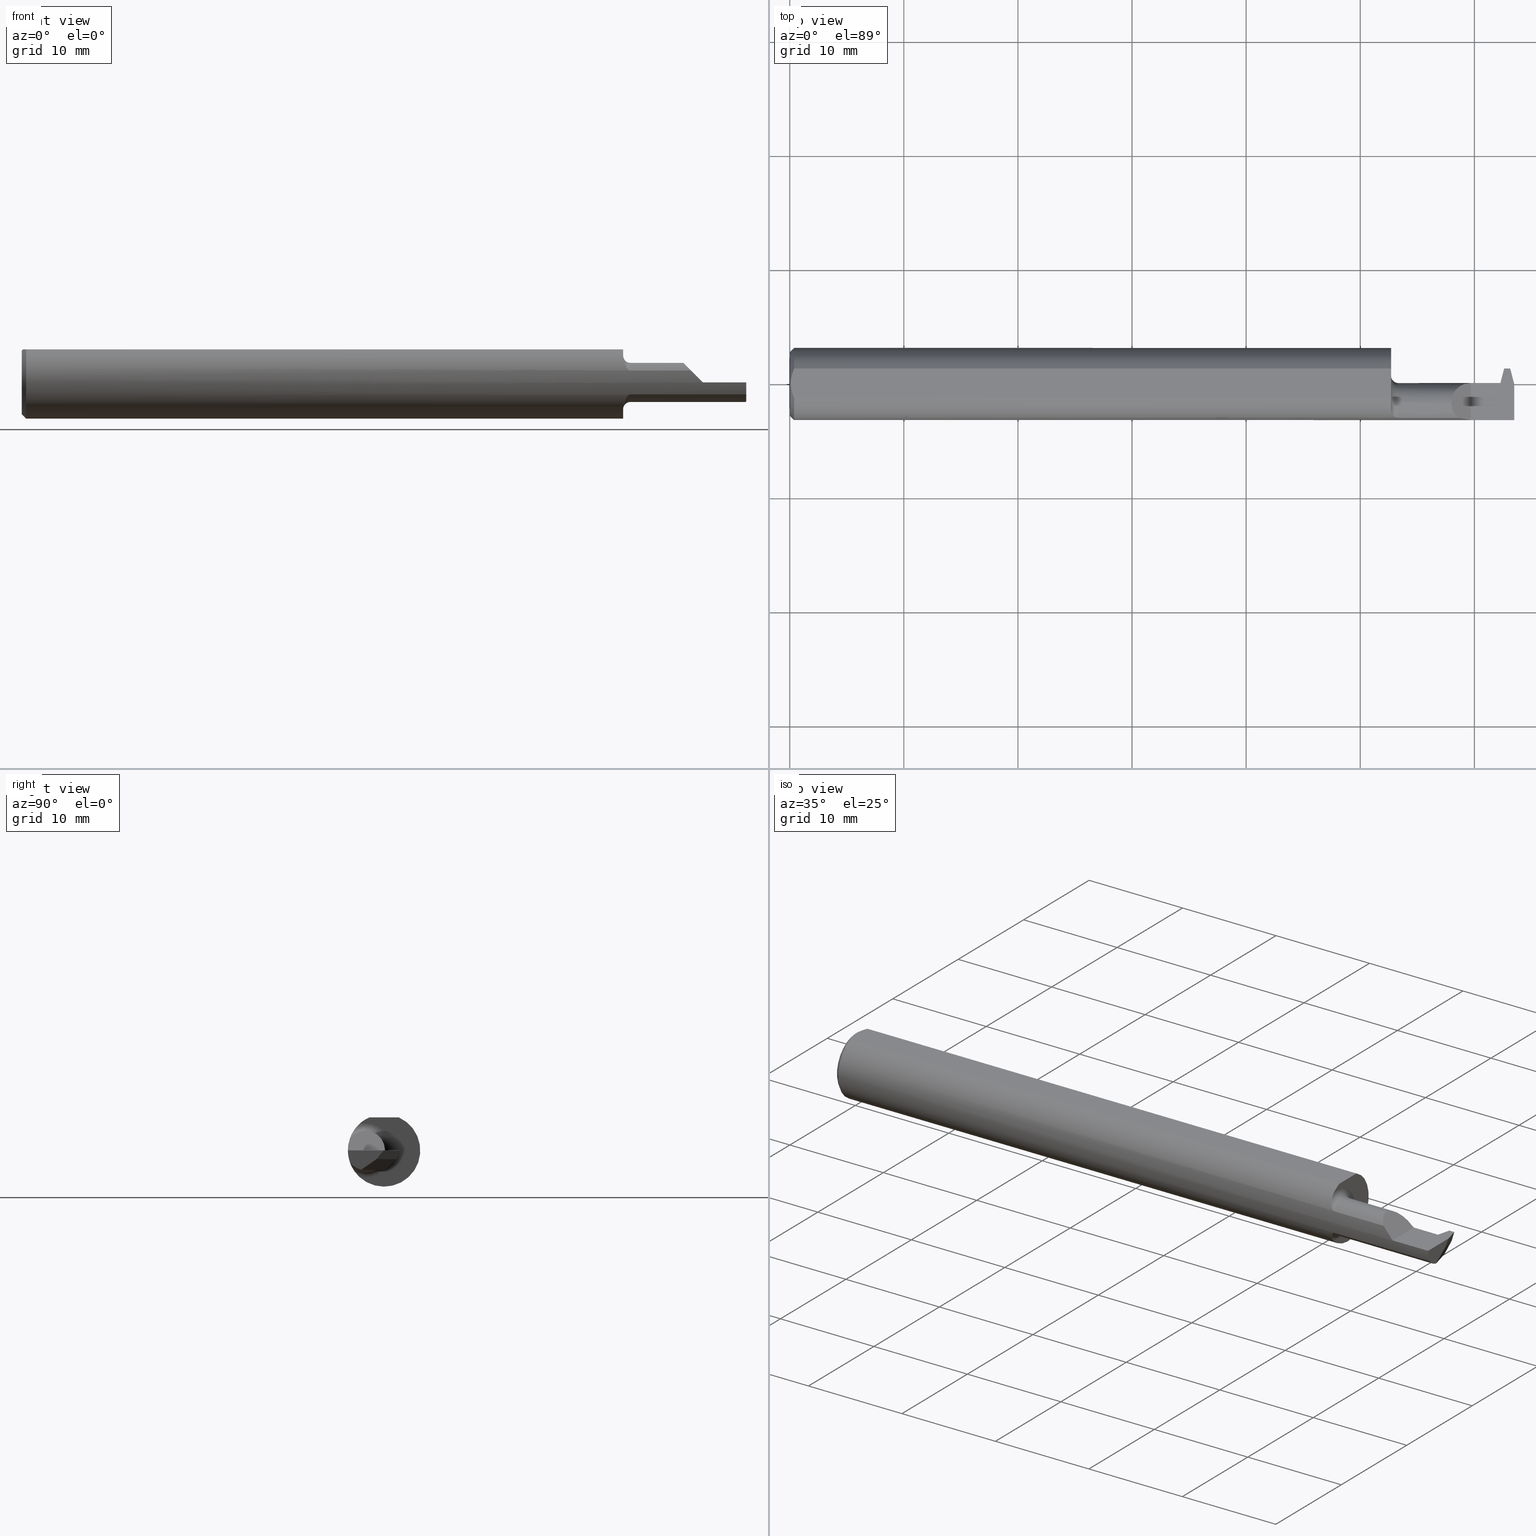
[diagram: canonical four-view strip — front | top / right | iso, engineering-drawing reading convention]
A machine part, canonical four-view strip (front | top / right | iso — engineering-drawing reading convention). The complete STEP part file that produces these views, byte-faithful:
ISO-10303-21;
HEADER;
FILE_DESCRIPTION (( 'STEP AP203' ),
    '1' );
FILE_NAME ('230904-FAT180350-16.STEP',
    '2024-04-30T20:57:22',
    ( '' ),
    ( '' ),
    'SwSTEP 2.0',
    'SolidWorks 2022',
    '' );
FILE_SCHEMA (( 'CONFIG_CONTROL_DESIGN' ));
ENDSEC;

DATA;
#1 = AXIS2_PLACEMENT_3D ( 'NONE', #720, #37, #339 ) ;
#2 = ORIENTED_EDGE ( 'NONE', *, *, #498, .T. ) ;
#3 = PRODUCT_DEFINITION_SHAPE ( 'NONE', 'NONE',  #775 ) ;
#4 = ADVANCED_FACE ( 'NONE', ( #424 ), #53, .F. ) ;
#5 = DIRECTION ( 'NONE',  ( -1.000000000000000000, -0.000000000000000000, -0.000000000000000000 ) ) ;
#6 = ORIENTED_EDGE ( 'NONE', *, *, #247, .T. ) ;
#7 = DIRECTION ( 'NONE',  ( 0.000000000000000000, 0.000000000000000000, -1.000000000000000000 ) ) ;
#8 = CARTESIAN_POINT ( 'NONE',  ( 2.450000000000000178, -0.05595768985601804607, -0.06697625796091642714 ) ) ;
#9 = VERTEX_POINT ( 'NONE', #515 ) ;
#10 = PERSON_AND_ORGANIZATION_ROLE ( 'creator' ) ;
#11 = ORIENTED_EDGE ( 'NONE', *, *, #742, .F. ) ;
#12 = CARTESIAN_POINT ( 'NONE',  ( 1.716419294199207135, 3.003735556698906350, -0.02999999999988876842 ) ) ;
#13 = ADVANCED_FACE ( 'NONE', ( #360 ), #118, .F. ) ;
#14 = LINE ( 'NONE', #850, #777 ) ;
#15 = ORIENTED_EDGE ( 'NONE', *, *, #500, .F. ) ;
#16 = ORIENTED_EDGE ( 'NONE', *, *, #336, .T. ) ;
#17 = DIRECTION ( 'NONE',  ( 0.000000000000000000, 0.000000000000000000, 1.000000000000000000 ) ) ;
#18 = PLANE ( 'NONE',  #986 ) ;
#19 = ORIENTED_EDGE ( 'NONE', *, *, #459, .T. ) ;
#20 = CIRCLE ( 'NONE', #298, 0.1248500000000000026 ) ;
#21 = VERTEX_POINT ( 'NONE', #659 ) ;
#22 = CARTESIAN_POINT ( 'NONE',  ( 2.100000000000000089, -0.06435000000000003217, 0.000000000000000000 ) ) ;
#23 = CARTESIAN_POINT ( 'NONE',  ( 0.003999999999982594735, -1.276290005483319770E-15, 0.1138500000000000068 ) ) ;
#24 = VERTEX_POINT ( 'NONE', #125 ) ;
#25 = ADVANCED_FACE ( 'NONE', ( #44 ), #894, .T. ) ;
#26 = PERSON_AND_ORGANIZATION ( #558, #876 ) ;
#27 = ORIENTED_EDGE ( 'NONE', *, *, #915, .F. ) ;
#28 = FACE_OUTER_BOUND ( 'NONE', #913, .T. ) ;
#29 = ORIENTED_EDGE ( 'NONE', *, *, #641, .F. ) ;
#30 = CARTESIAN_POINT ( 'NONE',  ( 2.500000000000000000, -0.1178880730380729852, -0.04110869415792685333 ) ) ;
#31 = DIRECTION ( 'NONE',  ( -0.9786527043120508695, 3.341913033461227162E-15, 0.2055210070593990190 ) ) ;
#32 = VECTOR ( 'NONE', #539, 39.37007874015748143 ) ;
#33 = ORIENTED_EDGE ( 'NONE', *, *, #152, .T. ) ;
#34 = VECTOR ( 'NONE', #80, 39.37007874015748143 ) ;
#35 = VECTOR ( 'NONE', #96, 39.37007874015748143 ) ;
#36 = EDGE_CURVE ( 'NONE', #941, #945, #437, .T. ) ;
#37 = DIRECTION ( 'NONE',  ( 0.000000000000000000, -0.7071067811865514585, 0.7071067811865436870 ) ) ;
#38 = ORIENTED_EDGE ( 'NONE', *, *, #881, .T. ) ;
#39 = DIRECTION ( 'NONE',  ( 0.000000000000000000, -0.8191520442889929088, -0.5735764363510444941 ) ) ;
#40 = ORIENTED_EDGE ( 'NONE', *, *, #735, .F. ) ;
#41 = SECURITY_CLASSIFICATION_LEVEL ( 'unclassified' ) ;
#42 = LINE ( 'NONE', #341, #556 ) ;
#43 = CARTESIAN_POINT ( 'NONE',  ( 2.500000000000000000, 0.000000000000000000, 0.000000000000000000 ) ) ;
#44 = FACE_OUTER_BOUND ( 'NONE', #306, .T. ) ;
#45 = EDGE_CURVE ( 'NONE', #618, #645, #666, .T. ) ;
#46 = VECTOR ( 'NONE', #602, 39.37007874015748143 ) ;
#47 = CIRCLE ( 'NONE', #404, 0.02500000000000000486 ) ;
#48 = CARTESIAN_POINT ( 'NONE',  ( 2.500000000000000000, 0.000000000000000000, 0.000000000000000000 ) ) ;
#49 = ORIENTED_EDGE ( 'NONE', *, *, #718, .F. ) ;
#50 = ADVANCED_FACE ( 'NONE', ( #349 ), #841, .F. ) ;
#51 = DIRECTION ( 'NONE',  ( 1.000000000000000000, 0.000000000000000000, 0.000000000000000000 ) ) ;
#52 = DIRECTION ( 'NONE',  ( 0.000000000000000000, 1.770642218115725568E-15, -1.000000000000000000 ) ) ;
#53 = PLANE ( 'NONE',  #683 ) ;
#54 = LINE ( 'NONE', #920, #256 ) ;
#55 = CARTESIAN_POINT ( 'NONE',  ( 0.008925039223039965899, -0.03485448893270377130, 0.1138499999999999790 ) ) ;
#56 = ORIENTED_EDGE ( 'NONE', *, *, #904, .F. ) ;
#57 = ORIENTED_EDGE ( 'NONE', *, *, #579, .F. ) ;
#58 = LINE ( 'NONE', #63, #744 ) ;
#59 = CARTESIAN_POINT ( 'NONE',  ( 2.500000000000000000, 0.005320171601310336000, -0.06750000000000001832 ) ) ;
#60 = AXIS2_PLACEMENT_3D ( 'NONE', #141, #754, #463 ) ;
#61 = PLANE ( 'NONE',  #221 ) ;
#62 = ORIENTED_EDGE ( 'NONE', *, *, #780, .T. ) ;
#63 = CARTESIAN_POINT ( 'NONE',  ( 2.450000000000000178, 0.1050298648004461544, -0.06750000000000003220 ) ) ;
#64 = DIRECTION ( 'NONE',  ( 1.000000000000000000, 1.067128122525114190E-16, 1.922721241686373240E-32 ) ) ;
#65 = ADVANCED_FACE ( 'NONE', ( #116 ), #963, .T. ) ;
#66 = LINE ( 'NONE', #373, #138 ) ;
#67 = ORIENTED_EDGE ( 'NONE', *, *, #532, .F. ) ;
#68 = DIRECTION ( 'NONE',  ( 0.07805664651022140021, -0.7049493456751226850, -0.7049493456751304565 ) ) ;
#69 = CARTESIAN_POINT ( 'NONE',  ( 2.088805720551186074, -0.1151363458569193837, -0.04834088676794719153 ) ) ;
#70 = EDGE_CURVE ( 'NONE', #88, #180, #729, .T. ) ;
#71 = EDGE_CURVE ( 'NONE', #188, #24, #591, .T. ) ;
#72 = ORIENTED_EDGE ( 'NONE', *, *, #317, .T. ) ;
#73 = AXIS2_PLACEMENT_3D ( 'NONE', #408, #401, #95 ) ;
#74 = CARTESIAN_POINT ( 'NONE',  ( 0.003999999999982594735, -1.276290005483319770E-15, 0.1138500000000000068 ) ) ;
#75 = CARTESIAN_POINT ( 'NONE',  ( 2.078579630862570582, -0.1044777942651883146, -0.06855471305740289123 ) ) ;
#76 = AXIS2_PLACEMENT_3D ( 'NONE', #192, #578, #582 ) ;
#77 = ORIENTED_EDGE ( 'NONE', *, *, #669, .F. ) ;
#78 = MECHANICAL_CONTEXT ( 'NONE', #230, 'mechanical' ) ;
#79 = ORIENTED_EDGE ( 'NONE', *, *, #161, .T. ) ;
#80 = DIRECTION ( 'NONE',  ( -1.000000000000000000, -0.000000000000000000, -0.000000000000000000 ) ) ;
#81 = CARTESIAN_POINT ( 'NONE',  ( 2.450000000000000178, -0.05670567100518227044, -0.06750000000000001832 ) ) ;
#82 = VERTEX_POINT ( 'NONE', #880 ) ;
#83 = PERSON_AND_ORGANIZATION_ROLE ( 'creator' ) ;
#84 = EDGE_LOOP ( 'NONE', ( #109, #916, #104, #919 ) ) ;
#85 = CARTESIAN_POINT ( 'NONE',  ( 2.450000000000000178, -0.06435000000000003217, 0.000000000000000000 ) ) ;
#86 = CARTESIAN_POINT ( 'NONE',  ( 2.100000000000000089, -0.06435000000000003217, 0.06750000000000001832 ) ) ;
#87 = EDGE_LOOP ( 'NONE', ( #631, #340 ) ) ;
#88 = VERTEX_POINT ( 'NONE', #535 ) ;
#89 = LINE ( 'NONE', #629, #803 ) ;
#90 = DIRECTION ( 'NONE',  ( -0.3464677099351416434, 0.000000000000000000, 0.9380618987957555222 ) ) ;
#91 = VECTOR ( 'NONE', #903, 39.37007874015748143 ) ;
#92 = EDGE_LOOP ( 'NONE', ( #126, #455, #389, #290 ) ) ;
#93 =( LENGTH_UNIT ( ) NAMED_UNIT ( * ) SI_UNIT ( $, .METRE. ) );
#94 = VERTEX_POINT ( 'NONE', #299 ) ;
#95 = DIRECTION ( 'NONE',  ( 0.000000000000000000, 0.000000000000000000, -1.000000000000000000 ) ) ;
#96 = DIRECTION ( 'NONE',  ( 0.2503800040544323924, 0.9681476403781100748, -0.000000000000000000 ) ) ;
#97 = VERTEX_POINT ( 'NONE', #828 ) ;
#98 = ADVANCED_FACE ( 'NONE', ( #223 ), #763, .F. ) ;
#99 = APPROVAL_DATE_TIME ( #179, #385 ) ;
#100 = CC_DESIGN_DATE_AND_TIME_ASSIGNMENT ( #886, #646, ( #442 ) ) ;
#101 = VERTEX_POINT ( 'NONE', #147 ) ;
#102 = CARTESIAN_POINT ( 'NONE',  ( 0.003999999999982594735, -1.276290005483319770E-15, 0.1138500000000000068 ) ) ;
#103 = CARTESIAN_POINT ( 'NONE',  ( 2.465568958685582679, 0.05535000000000005194, 0.000000000000000000 ) ) ;
#104 = ORIENTED_EDGE ( 'NONE', *, *, #495, .T. ) ;
#105 = CALENDAR_DATE ( 2024, 30, 4 ) ;
#106 = DIRECTION ( 'NONE',  ( -0.9474803064293677579, -0.2450350680735350895, 0.2055210070593989913 ) ) ;
#107 = VECTOR ( 'NONE', #906, 39.37007874015748854 ) ;
#108 = APPROVAL_PERSON_ORGANIZATION ( #612, #636, #392 ) ;
#109 = ORIENTED_EDGE ( 'NONE', *, *, #895, .T. ) ;
#110 = AXIS2_PLACEMENT_3D ( 'NONE', #526, #752, #984 ) ;
#111 = VECTOR ( 'NONE', #478, 39.37007874015748143 ) ;
#112 = LINE ( 'NONE', #879, #353 ) ;
#113 = DIRECTION ( 'NONE',  ( 1.000000000000000000, 0.000000000000000000, 0.000000000000000000 ) ) ;
#114 = EDGE_CURVE ( 'NONE', #171, #329, #207, .T. ) ;
#115 = CARTESIAN_POINT ( 'NONE',  ( 2.452069120782205847, 0.003149999999999971833, 0.000000000000000000 ) ) ;
#116 = FACE_OUTER_BOUND ( 'NONE', #573, .T. ) ;
#117 = DIRECTION ( 'NONE',  ( -0.000000000000000000, 1.000000000000000000, -0.000000000000000000 ) ) ;
#118 = PLANE ( 'NONE',  #927 ) ;
#119 = EDGE_CURVE ( 'NONE', #236, #481, #178, .T. ) ;
#120 = TOROIDAL_SURFACE ( 'NONE', #859, 0.09250000000000002665, 0.02500000000000000139 ) ;
#121 = CARTESIAN_POINT ( 'NONE',  ( 0.01499999999999970281, 0.000000000000000000, 0.000000000000000000 ) ) ;
#122 = AXIS2_PLACEMENT_3D ( 'NONE', #703, #320, #333 ) ;
#123 = AXIS2_PLACEMENT_3D ( 'NONE', #48, #194, #128 ) ;
#124 = PLANE ( 'NONE',  #623 ) ;
#125 = CARTESIAN_POINT ( 'NONE',  ( 2.442069120782206060, 0.003149999999999970966, 0.000000000000000000 ) ) ;
#126 = ORIENTED_EDGE ( 'NONE', *, *, #357, .F. ) ;
#127 = CARTESIAN_POINT ( 'NONE',  ( 2.456947195464070255, -0.05670567100518226350, -0.06750000000000030975 ) ) ;
#128 = DIRECTION ( 'NONE',  ( 0.000000000000000000, 0.000000000000000000, -1.000000000000000000 ) ) ;
#129 = DIRECTION ( 'NONE',  ( 0.000000000000000000, 0.000000000000000000, 1.000000000000000000 ) ) ;
#130 = VERTEX_POINT ( 'NONE', #293 ) ;
#131 = DIRECTION ( 'NONE',  ( -1.000000000000000000, -0.000000000000000000, -0.000000000000000000 ) ) ;
#132 = CARTESIAN_POINT ( 'NONE',  ( 2.097138575833328744, -0.1178880730380729991, 0.04110869415792683251 ) ) ;
#133 = DIRECTION ( 'NONE',  ( 1.000000000000000000, 0.000000000000000000, 0.000000000000000000 ) ) ;
#134 = ORIENTED_EDGE ( 'NONE', *, *, #833, .T. ) ;
#135 = CONICAL_SURFACE ( 'NONE', #967, 0.1248500000000000026, 0.7853981633974608245 ) ;
#136 = CARTESIAN_POINT ( 'NONE',  ( 2.450000000000000178, -0.002552249386265836081, -0.02715304806246837330 ) ) ;
#137 = EDGE_CURVE ( 'NONE', #858, #188, #66, .T. ) ;
#138 = VECTOR ( 'NONE', #675, 39.37007874015748143 ) ;
#139 = DIRECTION ( 'NONE',  ( 0.000000000000000000, 0.000000000000000000, -1.000000000000000000 ) ) ;
#140 = VECTOR ( 'NONE', #117, 39.37007874015748143 ) ;
#141 = CARTESIAN_POINT ( 'NONE',  ( 2.100000000000000089, -0.06435000000000003217, 0.000000000000000000 ) ) ;
#142 = CC_DESIGN_PERSON_AND_ORGANIZATION_ASSIGNMENT ( #464, #83, ( #775 ) ) ;
#143 = ORIENTED_EDGE ( 'NONE', *, *, #198, .F. ) ;
#144 = CARTESIAN_POINT ( 'NONE',  ( 2.075000000000000178, -0.06435000000000003217, 0.000000000000000000 ) ) ;
#145 = EDGE_CURVE ( 'NONE', #810, #130, #211, .T. ) ;
#146 = CARTESIAN_POINT ( 'NONE',  ( 0.005080301127456087092, -0.01778481300359936387, 0.1138500000000000206 ) ) ;
#147 = CARTESIAN_POINT ( 'NONE',  ( 2.464999999999999858, 0.05314999999999990565, -3.367667473011537583E-17 ) ) ;
#148 = VERTEX_POINT ( 'NONE', #688 ) ;
#149 = LINE ( 'NONE', #302, #874 ) ;
#150 = CARTESIAN_POINT ( 'NONE',  ( 2.310505889776659494, 0.003091416068753647349, 0.03959411022334007740 ) ) ;
#151 = ORIENTED_EDGE ( 'NONE', *, *, #787, .F. ) ;
#152 = EDGE_CURVE ( 'NONE', #24, #304, #918, .T. ) ;
#153 = CARTESIAN_POINT ( 'NONE',  ( 2.100000000000000089, -0.06435000000000003217, -0.09250000000000002665 ) ) ;
#154 = VECTOR ( 'NONE', #550, 39.37007874015748854 ) ;
#155 = ORIENTED_EDGE ( 'NONE', *, *, #706, .T. ) ;
#156 = VECTOR ( 'NONE', #673, 39.37007874015748143 ) ;
#157 = CARTESIAN_POINT ( 'NONE',  ( 2.350000000000000089, -0.1248499599519359016, 9.999999999961100661E-05 ) ) ;
#158 = APPROVAL_PERSON_ORGANIZATION ( #632, #385, #694 ) ;
#159 = CARTESIAN_POINT ( 'NONE',  ( 2.436366871395940326, -0.002552249386265828708, -0.02715304806246833860 ) ) ;
#160 = AXIS2_PLACEMENT_3D ( 'NONE', #790, #106, #872 ) ;
#161 = EDGE_CURVE ( 'NONE', #171, #21, #975, .T. ) ;
#162 = EDGE_CURVE ( 'NONE', #538, #399, #700, .T. ) ;
#163 = APPLICATION_PROTOCOL_DEFINITION ( 'international standard', 'config_control_design', 1994, #230 ) ;
#164 = VERTEX_POINT ( 'NONE', #81 ) ;
#165 = CARTESIAN_POINT ( 'NONE',  ( 2.500000000000000000, -0.0005776289714501376240, 0.0004844812167191136143 ) ) ;
#166 = CARTESIAN_POINT ( 'NONE',  ( 2.075000000000000178, -0.06435000000000003217, -0.06750000000000001832 ) ) ;
#167 = ORIENTED_EDGE ( 'NONE', *, *, #749, .T. ) ;
#168 = ORIENTED_EDGE ( 'NONE', *, *, #568, .F. ) ;
#169 = FACE_OUTER_BOUND ( 'NONE', #932, .T. ) ;
#170 = DIRECTION ( 'NONE',  ( 0.000000000000000000, -1.000000000000000000, 0.000000000000000000 ) ) ;
#171 = VERTEX_POINT ( 'NONE', #448 ) ;
#172 = DIRECTION ( 'NONE',  ( 1.000000000000000000, 0.000000000000000000, 0.000000000000000000 ) ) ;
#173 = VERTEX_POINT ( 'NONE', #911 ) ;
#174 = CARTESIAN_POINT ( 'NONE',  ( 2.336004490154644841, -0.1248387500886322388, 0.01409550984535482172 ) ) ;
#175 = CC_DESIGN_APPROVAL ( #636, ( #543 ) ) ;
#176 = LINE ( 'NONE', #781, #461 ) ;
#177 = ORIENTED_EDGE ( 'NONE', *, *, #71, .T. ) ;
#178 = CIRCLE ( 'NONE', #60, 0.06750000000000001832 ) ;
#179 = DATE_AND_TIME ( #760, #269 ) ;
#180 = VERTEX_POINT ( 'NONE', #8 ) ;
#181 = CARTESIAN_POINT ( 'NONE',  ( 2.500000000000000000, 0.000000000000000000, 0.000000000000000000 ) ) ;
#182 = EDGE_CURVE ( 'NONE', #764, #449, #296, .T. ) ;
#183 = PLANE ( 'NONE',  #122 ) ;
#184 = EDGE_CURVE ( 'NONE', #980, #101, #233, .T. ) ;
#185 = ORIENTED_EDGE ( 'NONE', *, *, #495, .F. ) ;
#186 = ORIENTED_EDGE ( 'NONE', *, *, #633, .T. ) ;
#187 = FACE_OUTER_BOUND ( 'NONE', #721, .T. ) ;
#188 = VERTEX_POINT ( 'NONE', #159 ) ;
#189 = EDGE_LOOP ( 'NONE', ( #325, #387, #769, #72, #33, #613 ) ) ;
#190 = CARTESIAN_POINT ( 'NONE',  ( 2.450000000000000178, -0.06435000000000003217, 0.000000000000000000 ) ) ;
#191 = AXIS2_PLACEMENT_3D ( 'NONE', #212, #297, #897 ) ;
#192 = CARTESIAN_POINT ( 'NONE',  ( 2.100000000000000089, -0.06435000000000003217, 0.000000000000000000 ) ) ;
#193 = AXIS2_PLACEMENT_3D ( 'NONE', #115, #577, #199 ) ;
#194 = DIRECTION ( 'NONE',  ( 1.000000000000000000, 0.000000000000000000, 0.000000000000000000 ) ) ;
#195 = CARTESIAN_POINT ( 'NONE',  ( 2.440128569999999719, -0.01196363089143156686, -0.1891037151198633193 ) ) ;
#196 = PERSON_AND_ORGANIZATION_ROLE ( 'classification_officer' ) ;
#197 = CARTESIAN_POINT ( 'NONE',  ( 2.100000000000000089, -0.06435000000000003217, 0.000000000000000000 ) ) ;
#198 = EDGE_CURVE ( 'NONE', #549, #755, #402, .T. ) ;
#199 = DIRECTION ( 'NONE',  ( 0.000000000000000000, -0.2055210070593990190, -0.9786527043120508695 ) ) ;
#200 = CARTESIAN_POINT ( 'NONE',  ( 2.075000000000000178, -0.06435000000000003217, 0.000000000000000000 ) ) ;
#201 = DIRECTION ( 'NONE',  ( -1.000000000000000000, -0.000000000000000000, -0.000000000000000000 ) ) ;
#202 = ADVANCED_FACE ( 'NONE', ( #595 ), #61, .T. ) ;
#203 = VERTEX_POINT ( 'NONE', #935 ) ;
#204 = CONICAL_SURFACE ( 'NONE', #332, 0.1248500000000000026, 0.7853981633974608245 ) ;
#205 = ORIENTED_EDGE ( 'NONE', *, *, #887, .F. ) ;
#206 = CARTESIAN_POINT ( 'NONE',  ( 2.075000000000000178, -0.06435000000000003217, 0.000000000000000000 ) ) ;
#207 = CIRCLE ( 'NONE', #335, 0.1248500000000000026 ) ;
#208 = FACE_OUTER_BOUND ( 'NONE', #92, .T. ) ;
#209 = DIRECTION ( 'NONE',  ( -1.000000000000000000, -0.000000000000000000, -0.000000000000000000 ) ) ;
#210 = CARTESIAN_POINT ( 'NONE',  ( 2.498524702252900909, -0.07335304073178651463, -0.06704894329466547231 ) ) ;
#211 =( BOUNDED_CURVE ( )  B_SPLINE_CURVE ( 3, ( #670, #150, #817, #529 ),
 .UNSPECIFIED., .F., .T. ) 
 B_SPLINE_CURVE_WITH_KNOTS ( ( 4, 4 ),
 ( 4.713870462408088713, 6.283185307179586232 ),
 .UNSPECIFIED. ) 
 CURVE ( )  GEOMETRIC_REPRESENTATION_ITEM ( )  RATIONAL_B_SPLINE_CURVE ( ( 1.000000000000000000, 0.8050869134249070136, 0.8050869134249070136, 1.000000000000000000 ) ) 
 REPRESENTATION_ITEM ( '' )  );
#212 = CARTESIAN_POINT ( 'NONE',  ( 2.100000000000000089, -0.06435000000000003217, 0.000000000000000000 ) ) ;
#213 = DIRECTION ( 'NONE',  ( -1.000000000000000000, 0.000000000000000000, 0.000000000000000000 ) ) ;
#214 = EDGE_CURVE ( 'NONE', #810, #148, #14, .T. ) ;
#215 = CARTESIAN_POINT ( 'NONE',  ( 2.450000000000000178, 0.003149999999999988747, 0.000000000000000000 ) ) ;
#216 = DIRECTION ( 'NONE',  ( -1.000000000000000000, -0.000000000000000000, -0.000000000000000000 ) ) ;
#217 = CARTESIAN_POINT ( 'NONE',  ( 2.075463484348166965, -0.09455996579217590403, -0.08170711654871570806 ) ) ;
#218 = EDGE_CURVE ( 'NONE', #97, #94, #766, .T. ) ;
#219 = AXIS2_PLACEMENT_3D ( 'NONE', #518, #216, #594 ) ;
#220 = CARTESIAN_POINT ( 'NONE',  ( 0.01499999999999970281, 0.000000000000000000, -0.1248500000000000026 ) ) ;
#221 = AXIS2_PLACEMENT_3D ( 'NONE', #898, #239, #467 ) ;
#222 = FACE_OUTER_BOUND ( 'NONE', #564, .T. ) ;
#223 = FACE_OUTER_BOUND ( 'NONE', #851, .T. ) ;
#224 = VERTEX_POINT ( 'NONE', #403 ) ;
#225 = LINE ( 'NONE', #220, #604 ) ;
#226 = CARTESIAN_POINT ( 'NONE',  ( 2.075000000000000178, -0.05124158467494927677, 0.1138500000000000068 ) ) ;
#227 = CARTESIAN_POINT ( 'NONE',  ( 2.438170679457906775, 0.001221809097012123728, -0.01856365049595226635 ) ) ;
#228 = EDGE_LOOP ( 'NONE', ( #698, #415, #801, #186, #767, #286, #854, #489 ) ) ;
#229 = DIRECTION ( 'NONE',  ( 1.000000000000000000, 0.000000000000000000, 0.000000000000000000 ) ) ;
#230 = APPLICATION_CONTEXT ( 'configuration controlled 3d designs of mechanical parts and assemblies' ) ;
#231 = ORIENTED_EDGE ( 'NONE', *, *, #926, .F. ) ;
#232 = LINE ( 'NONE', #601, #107 ) ;
#233 = LINE ( 'NONE', #540, #861 ) ;
#234 = ADVANCED_BREP_SHAPE_REPRESENTATION ( '230904-FAT180350-16', ( #346, #477 ), #970 ) ;
#235 = CARTESIAN_POINT ( 'NONE',  ( 0.000000000000000000, 0.000000000000000000, 0.000000000000000000 ) ) ;
#236 = VERTEX_POINT ( 'NONE', #86 ) ;
#237 = VECTOR ( 'NONE', #229, 39.37007874015748143 ) ;
#238 = DIRECTION ( 'NONE',  ( -0.3464677099351621270, 0.000000000000000000, -0.9380618987957481947 ) ) ;
#239 = DIRECTION ( 'NONE',  ( -1.000000000000000000, 0.000000000000000000, -0.000000000000000000 ) ) ;
#240 = ORIENTED_EDGE ( 'NONE', *, *, #735, .T. ) ;
#241 = CARTESIAN_POINT ( 'NONE',  ( 2.486000000000000654, 0.05314999999999992647, 0.000000000000000000 ) ) ;
#242 = CARTESIAN_POINT ( 'NONE',  ( 2.075000000000000178, -0.06435000000000003217, 0.000000000000000000 ) ) ;
#243 = CARTESIAN_POINT ( 'NONE',  ( 2.500000000000000000, 0.1499999999999999944, -3.367667473011537583E-17 ) ) ;
#244 = VERTEX_POINT ( 'NONE', #785 ) ;
#245 = EDGE_CURVE ( 'NONE', #511, #97, #865, .T. ) ;
#246 = LINE ( 'NONE', #776, #237 ) ;
#247 = EDGE_CURVE ( 'NONE', #705, #203, #844, .T. ) ;
#248 = EDGE_LOOP ( 'NONE', ( #334, #365, #949 ) ) ;
#249 = ORIENTED_EDGE ( 'NONE', *, *, #840, .T. ) ;
#250 = ADVANCED_FACE ( 'NONE', ( #697 ), #18, .T. ) ;
#251 = EDGE_LOOP ( 'NONE', ( #834, #848, #974, #925, #257, #936 ) ) ;
#252 = EDGE_CURVE ( 'NONE', #130, #845, #690, .T. ) ;
#253 = CARTESIAN_POINT ( 'NONE',  ( 2.322206397681024992, -0.1224963014591190363, 0.02789360231897465570 ) ) ;
#254 = LOCAL_TIME ( 13, 57, 22.00000000000000000, #421 ) ;
#255 = LINE ( 'NONE', #243, #111 ) ;
#256 = VECTOR ( 'NONE', #398, 39.37007874015748143 ) ;
#257 = ORIENTED_EDGE ( 'NONE', *, *, #895, .F. ) ;
#258 = ORIENTED_EDGE ( 'NONE', *, *, #119, .F. ) ;
#259 = DIRECTION ( 'NONE',  ( -1.000000000000000000, -0.000000000000000000, -0.000000000000000000 ) ) ;
#260 = DIRECTION ( 'NONE',  ( -0.9116190025285898502, 0.2357607042868530567, -0.3367011798953876145 ) ) ;
#261 = EDGE_CURVE ( 'NONE', #399, #723, #342, .T. ) ;
#262 = ORIENTED_EDGE ( 'NONE', *, *, #749, .F. ) ;
#263 = ORIENTED_EDGE ( 'NONE', *, *, #261, .T. ) ;
#264 = PLANE ( 'NONE',  #123 ) ;
#265 = ORIENTED_EDGE ( 'NONE', *, *, #119, .T. ) ;
#266 = CARTESIAN_POINT ( 'NONE',  ( 2.488472951119633514, -0.01006077264900670162, -0.1835774135135380680 ) ) ;
#267 = CARTESIAN_POINT ( 'NONE',  ( 2.500000000000000000, -0.05124158467494929065, 0.1138500000000000068 ) ) ;
#268 = VECTOR ( 'NONE', #513, 39.37007874015748143 ) ;
#269 = LOCAL_TIME ( 13, 57, 22.00000000000000000, #553 ) ;
#270 = DIRECTION ( 'NONE',  ( 1.000000000000000000, 0.000000000000000000, 0.000000000000000000 ) ) ;
#271 = ORIENTED_EDGE ( 'NONE', *, *, #184, .F. ) ;
#272 = EDGE_CURVE ( 'NONE', #980, #705, #315, .T. ) ;
#273 = CARTESIAN_POINT ( 'NONE',  ( 2.446947195464070024, -0.06435000000000003217, 0.000000000000000000 ) ) ;
#274 = CC_DESIGN_PERSON_AND_ORGANIZATION_ASSIGNMENT ( #689, #10, ( #543 ) ) ;
#275 = CARTESIAN_POINT ( 'NONE',  ( 2.075000000000000178, -0.05595768985601794199, -0.06697625796091639938 ) ) ;
#276 = ORIENTED_EDGE ( 'NONE', *, *, #931, .F. ) ;
#277 = EDGE_CURVE ( 'NONE', #82, #627, #255, .T. ) ;
#278 = CARTESIAN_POINT ( 'NONE',  ( 2.471668405726069828, 0.05377257574048088101, -0.03000000000000212566 ) ) ;
#279 = CARTESIAN_POINT ( 'NONE',  ( 2.350000000000000089, 0.1499999999999999944, -3.367667473011537583E-17 ) ) ;
#280 = LOCAL_TIME ( 13, 57, 22.00000000000000000, #311 ) ;
#281 = DIRECTION ( 'NONE',  ( 0.000000000000000000, 0.000000000000000000, -1.000000000000000000 ) ) ;
#282 = AXIS2_PLACEMENT_3D ( 'NONE', #200, #209, #129 ) ;
#283 = CARTESIAN_POINT ( 'NONE',  ( 2.446947195464070024, -0.004283243744551786490, -0.03079342126085652526 ) ) ;
#284 = DIRECTION ( 'NONE',  ( 0.000000000000000000, 0.000000000000000000, -1.000000000000000000 ) ) ;
#285 = ADVANCED_FACE ( 'NONE', ( #187 ), #183, .F. ) ;
#286 = ORIENTED_EDGE ( 'NONE', *, *, #771, .T. ) ;
#287 = LINE ( 'NONE', #450, #156 ) ;
#288 = FACE_OUTER_BOUND ( 'NONE', #251, .T. ) ;
#289 = DIRECTION ( 'NONE',  ( 1.000000000000000000, -0.000000000000000000, -0.000000000000000000 ) ) ;
#290 = ORIENTED_EDGE ( 'NONE', *, *, #247, .F. ) ;
#291 = DIRECTION ( 'NONE',  ( -1.000000000000000000, -0.000000000000000000, -0.000000000000000000 ) ) ;
#292 = CARTESIAN_POINT ( 'NONE',  ( 2.100000000000000089, -0.1178880730380729852, 0.04110869415792685333 ) ) ;
#293 = CARTESIAN_POINT ( 'NONE',  ( 2.282599999999999962, -0.06435000000000003217, 0.06750000000000001832 ) ) ;
#294 = VECTOR ( 'NONE', #765, 39.37007874015748143 ) ;
#295 = CARTESIAN_POINT ( 'NONE',  ( 0.01499999999999970281, 0.000000000000000000, 0.000000000000000000 ) ) ;
#296 = CIRCLE ( 'NONE', #654, 0.06750000000000001832 ) ;
#297 = DIRECTION ( 'NONE',  ( 1.000000000000000000, 0.000000000000000000, 0.000000000000000000 ) ) ;
#298 = AXIS2_PLACEMENT_3D ( 'NONE', #956, #270, #572 ) ;
#299 = CARTESIAN_POINT ( 'NONE',  ( 2.100000000000000089, -0.06435000000000003217, -0.06750000000000001832 ) ) ;
#300 = CALENDAR_DATE ( 2024, 30, 4 ) ;
#301 = ORIENTED_EDGE ( 'NONE', *, *, #161, .F. ) ;
#302 = CARTESIAN_POINT ( 'NONE',  ( 2.446947195464070024, 3.128308802917997955, 2.162671143948034391 ) ) ;
#303 = CARTESIAN_POINT ( 'NONE',  ( 2.500000000000000000, -0.06435000000000003217, 0.000000000000000000 ) ) ;
#304 = VERTEX_POINT ( 'NONE', #630 ) ;
#305 = PERSON_AND_ORGANIZATION ( #558, #876 ) ;
#306 = EDGE_LOOP ( 'NONE', ( #814, #167, #265, #648 ) ) ;
#307 = DIRECTION ( 'NONE',  ( -1.000000000000000000, -0.000000000000000000, -0.000000000000000000 ) ) ;
#308 = DIRECTION ( 'NONE',  ( 0.2013133534504519540, 0.2013133534504512878, 0.9586166425871539554 ) ) ;
#309 =( BOUNDED_CURVE ( )  B_SPLINE_CURVE ( 3, ( #896, #977, #210, #892 ),
 .UNSPECIFIED., .F., .F. ) 
 B_SPLINE_CURVE_WITH_KNOTS ( ( 4, 4 ),
 ( 0.6108652381980129720, 0.8110997559319969019 ),
 .UNSPECIFIED. ) 
 CURVE ( )  GEOMETRIC_REPRESENTATION_ITEM ( )  RATIONAL_B_SPLINE_CURVE ( ( 1.000000000000000000, 0.9966616347228353101, 0.9966616347228353101, 1.000000000000000000 ) ) 
 REPRESENTATION_ITEM ( '' )  );
#310 = ORIENTED_EDGE ( 'NONE', *, *, #639, .T. ) ;
#311 = COORDINATED_UNIVERSAL_TIME_OFFSET ( 8, 0, .BEHIND. ) ;
#312 = VECTOR ( 'NONE', #64, 39.37007874015748143 ) ;
#313 = ORIENTED_EDGE ( 'NONE', *, *, #704, .T. ) ;
#314 = CARTESIAN_POINT ( 'NONE',  ( 2.482164078575293420, 0.04282017160131252470, -0.02999999999999697353 ) ) ;
#315 = LINE ( 'NONE', #930, #559 ) ;
#316 = ORIENTED_EDGE ( 'NONE', *, *, #855, .F. ) ;
#317 = EDGE_CURVE ( 'NONE', #188, #24, #176, .T. ) ;
#318 = ORIENTED_EDGE ( 'NONE', *, *, #639, .F. ) ;
#319 = DIRECTION ( 'NONE',  ( 0.9474803064293684240, -0.2450350680735325082, 0.2055210070593990190 ) ) ;
#320 = DIRECTION ( 'NONE',  ( -0.000000000000000000, 0.000000000000000000, -1.000000000000000000 ) ) ;
#321 = EDGE_CURVE ( 'NONE', #304, #101, #327, .T. ) ;
#322 = ORIENTED_EDGE ( 'NONE', *, *, #726, .F. ) ;
#323 = ADVANCED_FACE ( 'NONE', ( #28 ), #620, .F. ) ;
#324 = PERSON_AND_ORGANIZATION_ROLE ( 'design_owner' ) ;
#325 = ORIENTED_EDGE ( 'NONE', *, *, #633, .F. ) ;
#326 = DIRECTION ( 'NONE',  ( -1.000000000000000000, -0.000000000000000000, -0.000000000000000000 ) ) ;
#327 = LINE ( 'NONE', #103, #35 ) ;
#328 = ORIENTED_EDGE ( 'NONE', *, *, #972, .F. ) ;
#329 = VERTEX_POINT ( 'NONE', #414 ) ;
#330 = LINE ( 'NONE', #793, #954 ) ;
#331 = ADVANCED_FACE ( 'NONE', ( #715 ), #488, .F. ) ;
#332 = AXIS2_PLACEMENT_3D ( 'NONE', #121, #571, #490 ) ;
#333 = DIRECTION ( 'NONE',  ( -1.000000000000000000, 0.000000000000000000, 0.000000000000000000 ) ) ;
#334 = ORIENTED_EDGE ( 'NONE', *, *, #336, .F. ) ;
#335 = AXIS2_PLACEMENT_3D ( 'NONE', #758, #133, #598 ) ;
#336 = EDGE_CURVE ( 'NONE', #180, #97, #719, .T. ) ;
#337 = ORIENTED_EDGE ( 'NONE', *, *, #321, .T. ) ;
#338 = ADVANCED_FACE ( 'NONE', ( #584 ), #658, .F. ) ;
#339 = DIRECTION ( 'NONE',  ( 0.000000000000000000, -0.7071067811865435759, -0.7071067811865513475 ) ) ;
#340 = ORIENTED_EDGE ( 'NONE', *, *, #459, .F. ) ;
#341 = CARTESIAN_POINT ( 'NONE',  ( 2.455220163243291065, 0.09344901159057500406, -0.06750000000000003220 ) ) ;
#342 = B_SPLINE_CURVE_WITH_KNOTS ( 'NONE', 3,
 ( #472, #709, #566, #867, #857, #23 ),
 .UNSPECIFIED., .F., .F.,
 ( 4, 2, 4 ),
 ( 0.001209797888329797611, 0.001876628042345585999, 0.002543458196361374386 ),
 .UNSPECIFIED. ) ;
#343 = CYLINDRICAL_SURFACE ( 'NONE', #746, 0.1248500000000000026 ) ;
#344 = VERTEX_POINT ( 'NONE', #800 ) ;
#345 = DIRECTION ( 'NONE',  ( 0.000000000000000000, 0.000000000000000000, -1.000000000000000000 ) ) ;
#346 = MANIFOLD_SOLID_BREP ( 'Cut-Sweep1', #794 ) ;
#347 = DIRECTION ( 'NONE',  ( 0.000000000000000000, 0.000000000000000000, 1.000000000000000000 ) ) ;
#348 = AXIS2_PLACEMENT_3D ( 'NONE', #85, #476, #642 ) ;
#349 = FACE_OUTER_BOUND ( 'NONE', #747, .T. ) ;
#350 = CIRCLE ( 'NONE', #969, 0.06750000000000001832 ) ;
#351 = CC_DESIGN_APPROVAL ( #385, ( #775 ) ) ;
#352 = ADVANCED_FACE ( 'NONE', ( #426 ), #124, .F. ) ;
#353 = VECTOR ( 'NONE', #647, 39.37007874015748854 ) ;
#354 = CC_DESIGN_PERSON_AND_ORGANIZATION_ASSIGNMENT ( #583, #196, ( #442 ) ) ;
#355 = FACE_OUTER_BOUND ( 'NONE', #468, .T. ) ;
#356 = ORIENTED_EDGE ( 'NONE', *, *, #676, .T. ) ;
#357 = EDGE_CURVE ( 'NONE', #9, #705, #112, .T. ) ;
#358 = EDGE_CURVE ( 'NONE', #244, #344, #423, .T. ) ;
#359 = LINE ( 'NONE', #266, #479 ) ;
#360 = FACE_OUTER_BOUND ( 'NONE', #552, .T. ) ;
#361 = DIRECTION ( 'NONE',  ( 0.000000000000000000, -1.000000000000000000, 1.008033037487503485E-16 ) ) ;
#362 = CARTESIAN_POINT ( 'NONE',  ( 2.456947195464070255, 3.128308802917997955, 2.162671143948034391 ) ) ;
#363 = AXIS2_PLACEMENT_3D ( 'NONE', #153, #617, #846 ) ;
#364 = B_SPLINE_CURVE_WITH_KNOTS ( 'NONE', 3,
 ( #74, #528, #146, #55, #376, #985 ),
 .UNSPECIFIED., .F., .F.,
 ( 4, 2, 4 ),
 ( 0.002543458196361374386, 0.003213918189955199643, 0.003884378183549024900 ),
 .UNSPECIFIED. ) ;
#365 = ORIENTED_EDGE ( 'NONE', *, *, #405, .T. ) ;
#366 = DIRECTION ( 'NONE',  ( 0.000000000000000000, 0.000000000000000000, 1.000000000000000000 ) ) ;
#367 = PRODUCT ( '230904-FAT180350-16', '230904-FAT180350-16', '', ( #78 ) ) ;
#368 = CARTESIAN_POINT ( 'NONE',  ( 2.075472843869164308, -0.09461185655952933371, 0.08164619401006140142 ) ) ;
#369 = CARTESIAN_POINT ( 'NONE',  ( 2.094569448206967444, -0.1173612273236402659, -0.04263257538414207820 ) ) ;
#370 = ORIENTED_EDGE ( 'NONE', *, *, #574, .T. ) ;
#371 = CARTESIAN_POINT ( 'NONE',  ( 2.350000000000000089, -0.06435000000000003217, 0.000000000000000000 ) ) ;
#372 = CARTESIAN_POINT ( 'NONE',  ( 2.082148820116562771, -0.1099047179638918265, 0.05947070158462895717 ) ) ;
#373 = CARTESIAN_POINT ( 'NONE',  ( 2.075000000000000178, -0.002552249386265894628, -0.02715304806246847738 ) ) ;
#374 = ORIENTED_EDGE ( 'NONE', *, *, #427, .T. ) ;
#375 = CARTESIAN_POINT ( 'NONE',  ( 2.446947195464070024, 3.128308802917997955, 2.162671143948034391 ) ) ;
#376 = CARTESIAN_POINT ( 'NONE',  ( 0.01167347033176715718, -0.04313650299737421812, 0.1138500000000000068 ) ) ;
#377 = DIRECTION ( 'NONE',  ( 1.000000000000000000, -0.000000000000000000, -0.000000000000000000 ) ) ;
#378 = ORIENTED_EDGE ( 'NONE', *, *, #218, .F. ) ;
#379 = CIRCLE ( 'NONE', #587, 0.1098499999999999199 ) ;
#380 = EDGE_CURVE ( 'NONE', #236, #224, #47, .T. ) ;
#381 = AXIS2_PLACEMENT_3D ( 'NONE', #770, #319, #922 ) ;
#382 = CARTESIAN_POINT ( 'NONE',  ( 2.498851653931791983, 0.1053268472866106809, -0.06750000000000003220 ) ) ;
#383 = CIRCLE ( 'NONE', #860, 0.09250000000000002665 ) ;
#384 = CARTESIAN_POINT ( 'NONE',  ( 2.100000000000000089, -0.06435000000000003217, 0.000000000000000000 ) ) ;
#385 = APPROVAL ( #469, 'UNSPECIFIED' ) ;
#386 = CARTESIAN_POINT ( 'NONE',  ( 2.442069120782206060, 0.003149999999999970966, 0.000000000000000000 ) ) ;
#387 = ORIENTED_EDGE ( 'NONE', *, *, #500, .T. ) ;
#388 = DATE_AND_TIME ( #835, #506 ) ;
#389 = ORIENTED_EDGE ( 'NONE', *, *, #534, .F. ) ;
#390 = FACE_OUTER_BOUND ( 'NONE', #836, .T. ) ;
#391 = CARTESIAN_POINT ( 'NONE',  ( 0.000000000000000000, 0.000000000000000000, 0.000000000000000000 ) ) ;
#392 = APPROVAL_ROLE ( '' ) ;
#393 = VERTEX_POINT ( 'NONE', #501 ) ;
#394 = FACE_OUTER_BOUND ( 'NONE', #829, .T. ) ;
#395 = CARTESIAN_POINT ( 'NONE',  ( 2.440128569999999719, 0.04282017160130987404, -0.03000000000000005440 ) ) ;
#396 = DESIGN_CONTEXT ( 'detailed design', #454, 'design' ) ;
#397 = ORIENTED_EDGE ( 'NONE', *, *, #184, .T. ) ;
#398 = DIRECTION ( 'NONE',  ( -1.000000000000000000, -0.000000000000000000, -0.000000000000000000 ) ) ;
#399 = VERTEX_POINT ( 'NONE', #951 ) ;
#400 = AXIS2_PLACEMENT_3D ( 'NONE', #181, #484, #762 ) ;
#401 = DIRECTION ( 'NONE',  ( 1.000000000000000000, 0.000000000000000000, 0.000000000000000000 ) ) ;
#402 = CIRCLE ( 'NONE', #955, 0.1098499999999999199 ) ;
#403 = CARTESIAN_POINT ( 'NONE',  ( 2.075000000000000178, -0.06435000000000003217, 0.09250000000000002665 ) ) ;
#404 = AXIS2_PLACEMENT_3D ( 'NONE', #649, #432, #797 ) ;
#405 = EDGE_CURVE ( 'NONE', #180, #164, #728, .T. ) ;
#406 = ORIENTED_EDGE ( 'NONE', *, *, #152, .F. ) ;
#407 = ORIENTED_EDGE ( 'NONE', *, *, #198, .T. ) ;
#408 = CARTESIAN_POINT ( 'NONE',  ( 2.075000000000000178, 0.2031499999999999972, 0.000000000000000000 ) ) ;
#409 = DIRECTION ( 'NONE',  ( -1.000000000000000000, -1.477605784794887421E-15, -1.477605784794903593E-15 ) ) ;
#410 = ORIENTED_EDGE ( 'NONE', *, *, #706, .F. ) ;
#411 = LENGTH_MEASURE_WITH_UNIT ( LENGTH_MEASURE( 0.02539999999999999897 ), #93 );
#412 = EDGE_LOOP ( 'NONE', ( #2, #983, #38, #655, #818, #634 ) ) ;
#413 = CARTESIAN_POINT ( 'NONE',  ( 2.075000000000000178, -0.06435000000000003217, 0.06750000000000001832 ) ) ;
#414 = CARTESIAN_POINT ( 'NONE',  ( 2.075000000000000178, 0.05124158467494929065, 0.1138500000000000068 ) ) ;
#415 = ORIENTED_EDGE ( 'NONE', *, *, #704, .F. ) ;
#416 = DIRECTION ( 'NONE',  ( 0.000000000000000000, 0.8191520442889929088, 0.5735764363510444941 ) ) ;
#417 = B_SPLINE_CURVE_WITH_KNOTS ( 'NONE', 3,
 ( #292, #132, #447, #826, #971, #664, #372, #917, #674, #368, #668, #451 ),
 .UNSPECIFIED., .F., .F.,
 ( 4, 2, 2, 2, 2, 4 ),
 ( 0.000000000000000000, 0.0002139781332481023612, 0.0004279562664962047224, 0.0008559125329924097700, 0.001283868799488614709, 0.001711825065984819974 ),
 .UNSPECIFIED. ) ;
#418 = DIRECTION ( 'NONE',  ( -1.000000000000000000, -0.000000000000000000, -0.000000000000000000 ) ) ;
#419 = ORIENTED_EDGE ( 'NONE', *, *, #869, .F. ) ;
#420 = CARTESIAN_POINT ( 'NONE',  ( 2.350000000000000089, 0.000000000000000000, 0.000000000000000000 ) ) ;
#421 = COORDINATED_UNIVERSAL_TIME_OFFSET ( 8, 0, .BEHIND. ) ;
#422 = CARTESIAN_POINT ( 'NONE',  ( 2.075000000000000178, -0.08680804195804191215, 0.08973230383429835200 ) ) ;
#423 = LINE ( 'NONE', #889, #140 ) ;
#424 = FACE_OUTER_BOUND ( 'NONE', #695, .T. ) ;
#425 = CARTESIAN_POINT ( 'NONE',  ( 2.350000000000000089, 0.003149925925885245243, 9.999999999961100661E-05 ) ) ;
#426 = FACE_OUTER_BOUND ( 'NONE', #544, .T. ) ;
#427 = EDGE_CURVE ( 'NONE', #203, #101, #359, .T. ) ;
#428 = CIRCLE ( 'NONE', #348, 0.06750000000000001832 ) ;
#429 = ADVANCED_FACE ( 'NONE', ( #795 ), #264, .T. ) ;
#430 = VECTOR ( 'NONE', #409, 39.37007874015748143 ) ;
#431 = ORIENTED_EDGE ( 'NONE', *, *, #182, .T. ) ;
#432 = DIRECTION ( 'NONE',  ( 0.000000000000000000, 1.000000000000000000, -1.224646799147353207E-16 ) ) ;
#433 = ORIENTED_EDGE ( 'NONE', *, *, #960, .F. ) ;
#434 = ORIENTED_EDGE ( 'NONE', *, *, #261, .F. ) ;
#435 = DIRECTION ( 'NONE',  ( -1.000000000000000000, 0.000000000000000000, -0.000000000000000000 ) ) ;
#436 = CARTESIAN_POINT ( 'NONE',  ( 2.496029762434592403, -0.06435000000000004605, -0.06750000000000001832 ) ) ;
#437 = LINE ( 'NONE', #362, #510 ) ;
#438 = ORIENTED_EDGE ( 'NONE', *, *, #137, .F. ) ;
#439 = CARTESIAN_POINT ( 'NONE',  ( 0.01499999999999970281, 1.528971528735470422E-17, 0.1248500000000000026 ) ) ;
#440 = CARTESIAN_POINT ( 'NONE',  ( 2.500000000000000000, 0.05124158467494929065, 0.1138500000000000068 ) ) ;
#441 = CARTESIAN_POINT ( 'NONE',  ( 2.082139659934243880, -0.1098890007994705875, -0.05949592994647465855 ) ) ;
#442 = SECURITY_CLASSIFICATION ( '', '', #41 ) ;
#443 = AXIS2_PLACEMENT_3D ( 'NONE', #371, #131, #366 ) ;
#444 = AXIS2_PLACEMENT_3D ( 'NONE', #885, #494, #796 ) ;
#445 = DIRECTION ( 'NONE',  ( 1.000000000000000000, 0.000000000000000000, 0.000000000000000000 ) ) ;
#446 = CIRCLE ( 'NONE', #685, 0.1248500000000000026 ) ;
#447 = CARTESIAN_POINT ( 'NONE',  ( 2.094575795023728038, -0.1173638605453972278, 0.04262586039006312916 ) ) ;
#448 = CARTESIAN_POINT ( 'NONE',  ( 2.075000000000000178, -0.08680804195804191215, -0.08973230383429835200 ) ) ;
#449 = VERTEX_POINT ( 'NONE', #733 ) ;
#450 = CARTESIAN_POINT ( 'NONE',  ( 2.450000000000000178, 0.01517271303695656541, -0.01717021365936204427 ) ) ;
#451 = CARTESIAN_POINT ( 'NONE',  ( 2.075000000000000178, -0.08680804195804191215, 0.08973230383429835200 ) ) ;
#452 = CARTESIAN_POINT ( 'NONE',  ( 2.075000000000000178, -0.08680804195804191215, -0.08973230383429835200 ) ) ;
#453 = EDGE_CURVE ( 'NONE', #244, #148, #446, .T. ) ;
#454 = APPLICATION_CONTEXT ( 'configuration controlled 3d designs of mechanical parts and assemblies' ) ;
#455 = ORIENTED_EDGE ( 'NONE', *, *, #527, .F. ) ;
#456 = CARTESIAN_POINT ( 'NONE',  ( 2.456947195464070255, -0.003150120752351898406, -0.02999999999999967970 ) ) ;
#457 = CARTESIAN_POINT ( 'NONE',  ( 0.01499999999999969413, -0.05124158467494929065, 0.1138500000000000068 ) ) ;
#458 = CARTESIAN_POINT ( 'NONE',  ( 2.440098870360894789, 0.003149999999999981374, -0.009381965038885680189 ) ) ;
#459 = EDGE_CURVE ( 'NONE', #640, #88, #608, .T. ) ;
#460 = ORIENTED_EDGE ( 'NONE', *, *, #162, .T. ) ;
#461 = VECTOR ( 'NONE', #308, 39.37007874015748143 ) ;
#462 = CARTESIAN_POINT ( 'NONE',  ( 2.075000000000000178, -0.004283243744551786490, -0.03079342126085652526 ) ) ;
#463 = DIRECTION ( 'NONE',  ( 0.000000000000000000, 0.000000000000000000, -1.000000000000000000 ) ) ;
#464 = PERSON_AND_ORGANIZATION ( #558, #876 ) ;
#465 = ORIENTED_EDGE ( 'NONE', *, *, #869, .T. ) ;
#466 = PLANE ( 'NONE',  #603 ) ;
#467 = DIRECTION ( 'NONE',  ( -0.000000000000000000, 0.000000000000000000, 1.000000000000000000 ) ) ;
#468 = EDGE_LOOP ( 'NONE', ( #316, #11, #731, #569, #240, #433, #555, #890, #933, #249, #460, #370, #475, #79 ) ) ;
#469 = APPROVAL_STATUS ( 'not_yet_approved' ) ;
#470 = ORIENTED_EDGE ( 'NONE', *, *, #676, .F. ) ;
#471 = FACE_OUTER_BOUND ( 'NONE', #823, .T. ) ;
#472 = CARTESIAN_POINT ( 'NONE',  ( 0.01499999999999970281, 0.05124158467494929065, 0.1138500000000000068 ) ) ;
#473 = ORIENTED_EDGE ( 'NONE', *, *, #45, .F. ) ;
#474 = CC_DESIGN_SECURITY_CLASSIFICATION ( #442, ( #543 ) ) ;
#475 = ORIENTED_EDGE ( 'NONE', *, *, #114, .F. ) ;
#476 = DIRECTION ( 'NONE',  ( -1.000000000000000000, -0.000000000000000000, -0.000000000000000000 ) ) ;
#477 = AXIS2_PLACEMENT_3D ( 'NONE', #235, #542, #172 ) ;
#478 = DIRECTION ( 'NONE',  ( -0.000000000000000000, 1.000000000000000000, -0.000000000000000000 ) ) ;
#479 = VECTOR ( 'NONE', #496, 39.37007874015748854 ) ;
#480 = ADVANCED_FACE ( 'NONE', ( #355 ), #343, .T. ) ;
#481 = VERTEX_POINT ( 'NONE', #812 ) ;
#482 = APPLICATION_PROTOCOL_DEFINITION ( 'international standard', 'config_control_design', 1994, #454 ) ;
#483 = ORIENTED_EDGE ( 'NONE', *, *, #182, .F. ) ;
#484 = DIRECTION ( 'NONE',  ( 1.000000000000000000, 0.000000000000000000, 0.000000000000000000 ) ) ;
#485 = DIRECTION ( 'NONE',  ( 0.2055210070593990190, 0.000000000000000000, 0.9786527043120508695 ) ) ;
#486 = EDGE_LOOP ( 'NONE', ( #155, #966, #871, #628 ) ) ;
#487 = ORIENTED_EDGE ( 'NONE', *, *, #272, .T. ) ;
#488 = PLANE ( 'NONE',  #160 ) ;
#489 = ORIENTED_EDGE ( 'NONE', *, *, #70, .F. ) ;
#490 = DIRECTION ( 'NONE',  ( 0.000000000000000000, 0.000000000000000000, -1.000000000000000000 ) ) ;
#491 = VECTOR ( 'NONE', #68, 39.37007874015748854 ) ;
#492 = CIRCLE ( 'NONE', #839, 0.1248500000000000026 ) ;
#493 = CARTESIAN_POINT ( 'NONE',  ( 2.450000000000000178, 0.01517271303695656541, -0.01717021365936204427 ) ) ;
#494 = DIRECTION ( 'NONE',  ( -1.000000000000000000, -0.000000000000000000, -0.000000000000000000 ) ) ;
#495 = EDGE_CURVE ( 'NONE', #941, #203, #653, .T. ) ;
#496 = DIRECTION ( 'NONE',  ( -0.1200238624775787216, 0.3232146245633322201, 0.9386834284807350492 ) ) ;
#497 = ORIENTED_EDGE ( 'NONE', *, *, #840, .F. ) ;
#498 = EDGE_CURVE ( 'NONE', #618, #778, #20, .T. ) ;
#499 = PLANE ( 'NONE',  #875 ) ;
#500 = EDGE_CURVE ( 'NONE', #740, #858, #893, .T. ) ;
#501 = CARTESIAN_POINT ( 'NONE',  ( 2.472988169046598461, 0.005320171601310327326, -0.06750000000000003220 ) ) ;
#502 = ORIENTED_EDGE ( 'NONE', *, *, #787, .T. ) ;
#503 = APPROVAL_STATUS ( 'not_yet_approved' ) ;
#504 = AXIS2_PLACEMENT_3D ( 'NONE', #384, #687, #7 ) ;
#505 = DIRECTION ( 'NONE',  ( -1.000000000000000000, -0.000000000000000000, -0.000000000000000000 ) ) ;
#506 = LOCAL_TIME ( 13, 57, 22.00000000000000000, #537 ) ;
#507 = DIRECTION ( 'NONE',  ( 0.000000000000000000, -0.3255681544571571995, -0.9455185755993165131 ) ) ;
#508 = CIRCLE ( 'NONE', #443, 0.06750000000000001832 ) ;
#509 = ADVANCED_FACE ( 'NONE', ( #208 ), #514, .F. ) ;
#510 = VECTOR ( 'NONE', #952, 39.37007874015748143 ) ;
#511 = VERTEX_POINT ( 'NONE', #436 ) ;
#512 = VECTOR ( 'NONE', #39, 39.37007874015748143 ) ;
#513 = DIRECTION ( 'NONE',  ( 1.000000000000000000, 0.000000000000000000, 0.000000000000000000 ) ) ;
#514 = PLANE ( 'NONE',  #1 ) ;
#515 = CARTESIAN_POINT ( 'NONE',  ( 2.478011830953401162, 0.005320171601310327326, -0.06750000000000003220 ) ) ;
#516 = ADVANCED_FACE ( 'NONE', ( #288 ), #609, .F. ) ;
#517 = FACE_OUTER_BOUND ( 'NONE', #651, .T. ) ;
#518 = CARTESIAN_POINT ( 'NONE',  ( 2.075000000000000178, -0.06435000000000003217, 0.000000000000000000 ) ) ;
#519 = DIRECTION ( 'NONE',  ( -0.000000000000000000, 0.000000000000000000, -1.000000000000000000 ) ) ;
#520 = ORIENTED_EDGE ( 'NONE', *, *, #321, .F. ) ;
#521 = DIRECTION ( 'NONE',  ( 1.000000000000000000, -0.000000000000000000, -0.000000000000000000 ) ) ;
#522 = DIRECTION ( 'NONE',  ( 1.000000000000000000, 0.000000000000000000, 0.000000000000000000 ) ) ;
#523 = CARTESIAN_POINT ( 'NONE',  ( 2.452069120782205847, 0.003149999999999971833, 0.000000000000000000 ) ) ;
#524 = ORIENTED_EDGE ( 'NONE', *, *, #358, .T. ) ;
#525 = VECTOR ( 'NONE', #873, 39.37007874015748143 ) ;
#526 = CARTESIAN_POINT ( 'NONE',  ( 2.236250000000000071, 0.1000000000000000056, 0.1138500000000000068 ) ) ;
#527 = EDGE_CURVE ( 'NONE', #393, #9, #597, .T. ) ;
#528 = CARTESIAN_POINT ( 'NONE',  ( 0.004000000000000225597, -0.008848600531297691474, 0.1138500000000000068 ) ) ;
#529 = CARTESIAN_POINT ( 'NONE',  ( 2.282599999999999962, -0.06435000000000003217, 0.06750000000000001832 ) ) ;
#530 = EDGE_LOOP ( 'NONE', ( #736, #611, #921, #40 ) ) ;
#531 = DIRECTION ( 'NONE',  ( -0.000000000000000000, 1.000000000000000000, -1.008033037487503485E-16 ) ) ;
#532 = EDGE_CURVE ( 'NONE', #481, #778, #417, .T. ) ;
#533 = CARTESIAN_POINT ( 'NONE',  ( 0.000000000000000000, 0.000000000000000000, -0.1098499999999999199 ) ) ;
#534 = EDGE_CURVE ( 'NONE', #203, #393, #978, .T. ) ;
#535 = CARTESIAN_POINT ( 'NONE',  ( 2.446947195464070024, -0.05595768985601794199, -0.06697625796091639938 ) ) ;
#536 = ORIENTED_EDGE ( 'NONE', *, *, #70, .T. ) ;
#537 = COORDINATED_UNIVERSAL_TIME_OFFSET ( 8, 0, .BEHIND. ) ;
#538 = VERTEX_POINT ( 'NONE', #982 ) ;
#539 = DIRECTION ( 'NONE',  ( 1.000000000000000000, 0.000000000000000000, 0.000000000000000000 ) ) ;
#540 = CARTESIAN_POINT ( 'NONE',  ( 2.350000000000000089, 0.05314999999999979463, -3.367667473011537583E-17 ) ) ;
#541 = CIRCLE ( 'NONE', #682, 0.09250000000000002665 ) ;
#542 = DIRECTION ( 'NONE',  ( 0.000000000000000000, 0.000000000000000000, 1.000000000000000000 ) ) ;
#543 = PRODUCT_DEFINITION_FORMATION_WITH_SPECIFIED_SOURCE ( 'ANY', '', #367, .NOT_KNOWN. ) ;
#544 = EDGE_LOOP ( 'NONE', ( #407, #739 ) ) ;
#545 = DIRECTION ( 'NONE',  ( -0.1571540165094713060, 0.2029672248372563215, 0.9664920696709329295 ) ) ;
#546 = CARTESIAN_POINT ( 'NONE',  ( 2.500000000000000000, -0.06435000000000004605, -0.06750000000000001832 ) ) ;
#547 =( NAMED_UNIT ( * ) PLANE_ANGLE_UNIT ( ) SI_UNIT ( $, .RADIAN. ) );
#548 = LINE ( 'NONE', #12, #940 ) ;
#549 = VERTEX_POINT ( 'NONE', #533 ) ;
#550 = DIRECTION ( 'NONE',  ( 0.000000000000000000, -0.6426264403010687465, -0.7661796514042753525 ) ) ;
#551 = CARTESIAN_POINT ( 'NONE',  ( 2.292046084672837658, -0.1048768480358367172, 0.05805391532716226016 ) ) ;
#552 = EDGE_LOOP ( 'NONE', ( #716, #783, #678, #524 ) ) ;
#553 = COORDINATED_UNIVERSAL_TIME_OFFSET ( 8, 0, .BEHIND. ) ;
#554 = LOCAL_TIME ( 13, 57, 22.00000000000000000, #799 ) ;
#555 = ORIENTED_EDGE ( 'NONE', *, *, #532, .T. ) ;
#556 = VECTOR ( 'NONE', #657, 39.37007874015748143 ) ;
#557 = DIRECTION ( 'NONE',  ( 0.000000000000000000, 0.000000000000000000, -1.000000000000000000 ) ) ;
#558 = PERSON ( 'UNSPECIFIED', 'UNSPECIFIED', 'UNSPECIFIED', ('UNSPECIFIED'), ('UNSPECIFIED'), ('UNSPECIFIED') ) ;
#559 = VECTOR ( 'NONE', #772, 39.37007874015748854 ) ;
#560 = DIRECTION ( 'NONE',  ( -1.000000000000000000, -0.000000000000000000, -0.000000000000000000 ) ) ;
#561 = AXIS2_PLACEMENT_3D ( 'NONE', #816, #679, #361 ) ;
#562 = EDGE_LOOP ( 'NONE', ( #976, #151, #672, #786 ) ) ;
#563 = PRODUCT_RELATED_PRODUCT_CATEGORY ( 'detail', '', ( #367 ) ) ;
#564 = EDGE_LOOP ( 'NONE', ( #49, #465, #434, #761, #27 ) ) ;
#565 = FACE_OUTER_BOUND ( 'NONE', #412, .T. ) ;
#566 = CARTESIAN_POINT ( 'NONE',  ( 0.008866562462787448695, 0.03466860267591459488, 0.1138500000000000206 ) ) ;
#567 = DIMENSIONAL_EXPONENTS ( 1.000000000000000000, 0.000000000000000000, 0.000000000000000000, 0.000000000000000000, 0.000000000000000000, 0.000000000000000000, 0.000000000000000000 ) ;
#568 = EDGE_CURVE ( 'NONE', #616, #171, #905, .T. ) ;
#569 = ORIENTED_EDGE ( 'NONE', *, *, #453, .T. ) ;
#570 = ORIENTED_EDGE ( 'NONE', *, *, #574, .F. ) ;
#571 = DIRECTION ( 'NONE',  ( 1.000000000000000000, -0.000000000000000000, -0.000000000000000000 ) ) ;
#572 = DIRECTION ( 'NONE',  ( 0.000000000000000000, 0.000000000000000000, -1.000000000000000000 ) ) ;
#573 = EDGE_LOOP ( 'NONE', ( #378, #773, #782, #483, #902, #891 ) ) ;
#574 = EDGE_CURVE ( 'NONE', #399, #329, #757, .T. ) ;
#575 = TOROIDAL_SURFACE ( 'NONE', #504, 0.09250000000000002665, 0.02500000000000000139 ) ;
#576 = CC_DESIGN_APPROVAL ( #732, ( #442 ) ) ;
#577 = DIRECTION ( 'NONE',  ( 1.044347822956644581E-16, -0.9786527043120508695, 0.2055210070593990190 ) ) ;
#578 = DIRECTION ( 'NONE',  ( 1.000000000000000000, 0.000000000000000000, 0.000000000000000000 ) ) ;
#579 = EDGE_CURVE ( 'NONE', #980, #627, #232, .T. ) ;
#580 = ADVANCED_FACE ( 'NONE', ( #222 ), #135, .T. ) ;
#581 = CARTESIAN_POINT ( 'NONE',  ( 2.450000000000000178, 0.003149999999999972267, 3.478577320754614054E-18 ) ) ;
#582 = DIRECTION ( 'NONE',  ( 0.000000000000000000, 0.000000000000000000, -1.000000000000000000 ) ) ;
#583 = PERSON_AND_ORGANIZATION ( #558, #876 ) ;
#584 = FACE_OUTER_BOUND ( 'NONE', #189, .T. ) ;
#585 = CARTESIAN_POINT ( 'NONE',  ( 2.436366871395940326, -0.002552249386265828708, -0.02715304806246833860 ) ) ;
#586 = CARTESIAN_POINT ( 'NONE',  ( 2.075000000000000178, 0.1000000000000000056, 0.1138500000000000068 ) ) ;
#587 = AXIS2_PLACEMENT_3D ( 'NONE', #708, #326, #557 ) ;
#588 = DIRECTION ( 'NONE',  ( 0.2503800040544436611, 0.9681476403781070772, -5.571124129471639010E-14 ) ) ;
#589 = AXIS2_PLACEMENT_3D ( 'NONE', #375, #445, #968 ) ;
#590 = DIRECTION ( 'NONE',  ( -0.000000000000000000, 0.000000000000000000, 1.000000000000000000 ) ) ;
#591 =( BOUNDED_CURVE ( )  B_SPLINE_CURVE ( 3, ( #585, #227, #458, #386 ),
 .UNSPECIFIED., .F., .F. ) 
 B_SPLINE_CURVE_WITH_KNOTS ( ( 4, 4 ),
 ( 1.156804228221857134, 1.570796326794912989 ),
 .UNSPECIFIED. ) 
 CURVE ( )  GEOMETRIC_REPRESENTATION_ITEM ( )  RATIONAL_B_SPLINE_CURVE ( ( 1.000000000000000000, 0.9857684695413670983, 0.9857684695413670983, 1.000000000000000000 ) ) 
 REPRESENTATION_ITEM ( '' )  );
#592 = AXIS2_PLACEMENT_3D ( 'NONE', #939, #31, #485 ) ;
#593 = CARTESIAN_POINT ( 'NONE',  ( 2.075000000000000178, 0.003149999999999980507, -3.367667473011537583E-17 ) ) ;
#594 = DIRECTION ( 'NONE',  ( 0.000000000000000000, 0.000000000000000000, -1.000000000000000000 ) ) ;
#595 = FACE_OUTER_BOUND ( 'NONE', #248, .T. ) ;
#596 = DIRECTION ( 'NONE',  ( 0.7071067811865386910, 0.000000000000000000, -0.7071067811865563435 ) ) ;
#597 = LINE ( 'NONE', #59, #32 ) ;
#598 = DIRECTION ( 'NONE',  ( 0.000000000000000000, 0.000000000000000000, -1.000000000000000000 ) ) ;
#599 = ORIENTED_EDGE ( 'NONE', *, *, #218, .T. ) ;
#600 = LINE ( 'NONE', #593, #268 ) ;
#601 = CARTESIAN_POINT ( 'NONE',  ( 2.485431041314417833, 0.05535000000000005194, 0.000000000000000000 ) ) ;
#602 = DIRECTION ( 'NONE',  ( 1.000000000000000000, 1.067128122525114190E-16, -0.000000000000000000 ) ) ;
#603 = AXIS2_PLACEMENT_3D ( 'NONE', #702, #692, #238 ) ;
#604 = VECTOR ( 'NONE', #596, 39.37007874015748143 ) ;
#605 = ORIENTED_EDGE ( 'NONE', *, *, #357, .T. ) ;
#606 = VECTOR ( 'NONE', #418, 39.37007874015748143 ) ;
#607 = CARTESIAN_POINT ( 'NONE',  ( 2.262500000000000178, -0.1178880730380729852, -0.04110869415792685333 ) ) ;
#608 = CIRCLE ( 'NONE', #730, 0.06750000000000001832 ) ;
#609 = PLANE ( 'NONE',  #561 ) ;
#610 = CARTESIAN_POINT ( 'NONE',  ( 2.077244443432142429, -0.1013644936721858902, -0.07309500289283984986 ) ) ;
#611 = ORIENTED_EDGE ( 'NONE', *, *, #145, .T. ) ;
#612 = PERSON_AND_ORGANIZATION ( #558, #876 ) ;
#613 = ORIENTED_EDGE ( 'NONE', *, *, #712, .F. ) ;
#614 = DIRECTION ( 'NONE',  ( 0.000000000000000000, -0.8191520442889929088, -0.5735764363510444941 ) ) ;
#615 = DIRECTION ( 'NONE',  ( 0.000000000000000000, 0.000000000000000000, 1.000000000000000000 ) ) ;
#616 = VERTEX_POINT ( 'NONE', #837 ) ;
#617 = DIRECTION ( 'NONE',  ( 0.000000000000000000, -1.000000000000000000, 0.000000000000000000 ) ) ;
#618 = VERTEX_POINT ( 'NONE', #226 ) ;
#619 = PLANE ( 'NONE',  #381 ) ;
#620 = PLANE ( 'NONE',  #592 ) ;
#621 = ORIENTED_EDGE ( 'NONE', *, *, #887, .T. ) ;
#622 = APPROVAL_DATE_TIME ( #388, #636 ) ;
#623 = AXIS2_PLACEMENT_3D ( 'NONE', #805, #661, #724 ) ;
#624 = AXIS2_PLACEMENT_3D ( 'NONE', #190, #883, #347 ) ;
#625 = LINE ( 'NONE', #462, #681 ) ;
#626 = CARTESIAN_POINT ( 'NONE',  ( 2.282599999999999962, -0.06435000000000003217, 0.06750000000000001832 ) ) ;
#627 = VERTEX_POINT ( 'NONE', #738 ) ;
#628 = ORIENTED_EDGE ( 'NONE', *, *, #726, .T. ) ;
#629 = CARTESIAN_POINT ( 'NONE',  ( 2.452069120782205847, 0.003149999999999971833, 0.000000000000000000 ) ) ;
#630 = CARTESIAN_POINT ( 'NONE',  ( 2.452069120782205847, 0.003149999999999971833, 0.000000000000000000 ) ) ;
#631 = ORIENTED_EDGE ( 'NONE', *, *, #656, .T. ) ;
#632 = PERSON_AND_ORGANIZATION ( #558, #876 ) ;
#633 = EDGE_CURVE ( 'NONE', #740, #941, #753, .T. ) ;
#634 = ORIENTED_EDGE ( 'NONE', *, *, #904, .T. ) ;
#635 = PLANE ( 'NONE',  #73 ) ;
#636 = APPROVAL ( #914, 'UNSPECIFIED' ) ;
#637 = ORIENTED_EDGE ( 'NONE', *, *, #317, .F. ) ;
#638 = APPROVAL_ROLE ( '' ) ;
#639 = EDGE_CURVE ( 'NONE', #723, #645, #364, .T. ) ;
#640 = VERTEX_POINT ( 'NONE', #283 ) ;
#641 = EDGE_CURVE ( 'NONE', #21, #94, #820, .T. ) ;
#642 = DIRECTION ( 'NONE',  ( 0.000000000000000000, 0.000000000000000000, 1.000000000000000000 ) ) ;
#643 = VECTOR ( 'NONE', #113, 39.37007874015748143 ) ;
#644 = CARTESIAN_POINT ( 'NONE',  ( 2.308991305842072794, -0.1178880730380730268, 0.04110869415792675619 ) ) ;
#645 = VERTEX_POINT ( 'NONE', #457 ) ;
#646 = DATE_TIME_ROLE ( 'classification_date' ) ;
#647 = DIRECTION ( 'NONE',  ( 0.07805664651022657663, 0.7049493456751223519, 0.7049493456751301235 ) ) ;
#648 = ORIENTED_EDGE ( 'NONE', *, *, #960, .T. ) ;
#649 = CARTESIAN_POINT ( 'NONE',  ( 2.100000000000000089, -0.06435000000000003217, 0.09250000000000002665 ) ) ;
#650 = ADVANCED_FACE ( 'NONE', ( #743 ), #575, .F. ) ;
#651 = EDGE_LOOP ( 'NONE', ( #15, #134, #77 ) ) ;
#652 = VECTOR ( 'NONE', #667, 39.37007874015748143 ) ;
#653 = LINE ( 'NONE', #278, #878 ) ;
#654 = AXIS2_PLACEMENT_3D ( 'NONE', #303, #289, #615 ) ;
#655 = ORIENTED_EDGE ( 'NONE', *, *, #568, .T. ) ;
#656 = EDGE_CURVE ( 'NONE', #640, #88, #149, .T. ) ;
#657 = DIRECTION ( 'NONE',  ( -0.2503800040544401084, 0.9681476403781081874, -9.645347760985759249E-17 ) ) ;
#658 = PLANE ( 'NONE',  #193 ) ;
#659 = CARTESIAN_POINT ( 'NONE',  ( 2.100000000000000089, -0.1178880730380729852, -0.04110869415792685333 ) ) ;
#660 = ADVANCED_FACE ( 'NONE', ( #565 ), #635, .T. ) ;
#661 = DIRECTION ( 'NONE',  ( 1.000000000000000000, 0.000000000000000000, 0.000000000000000000 ) ) ;
#662 = ORIENTED_EDGE ( 'NONE', *, *, #380, .T. ) ;
#663 = FACE_OUTER_BOUND ( 'NONE', #87, .T. ) ;
#664 = CARTESIAN_POINT ( 'NONE',  ( 2.084345155916293546, -0.1122401308722703883, 0.05488497975249280458 ) ) ;
#665 = AXIS2_PLACEMENT_3D ( 'NONE', #215, #435, #737 ) ;
#666 = LINE ( 'NONE', #267, #525 ) ;
#667 = DIRECTION ( 'NONE',  ( 0.000000000000000000, -1.000000000000000000, 0.000000000000000000 ) ) ;
#668 = CARTESIAN_POINT ( 'NONE',  ( 2.075000000000001066, -0.09084801577314524645, 0.08582398763750828663 ) ) ;
#669 = EDGE_CURVE ( 'NONE', #858, #173, #428, .T. ) ;
#670 = CARTESIAN_POINT ( 'NONE',  ( 2.350000000000000089, 0.003149925925885245243, 9.999999999961100661E-05 ) ) ;
#671 = ADVANCED_FACE ( 'NONE', ( #169 ), #466, .T. ) ;
#672 = ORIENTED_EDGE ( 'NONE', *, *, #972, .T. ) ;
#673 = DIRECTION ( 'NONE',  ( 0.000000000000000000, -0.8191520442889929088, -0.5735764363510444941 ) ) ;
#674 = CARTESIAN_POINT ( 'NONE',  ( 2.077257066675622710, -0.1013963922970315401, 0.07304981880275966677 ) ) ;
#675 = DIRECTION ( 'NONE',  ( -1.000000000000000000, -0.000000000000000000, -0.000000000000000000 ) ) ;
#676 = EDGE_CURVE ( 'NONE', #725, #449, #929, .T. ) ;
#677 = ADVANCED_FACE ( 'NONE', ( #390 ), #120, .F. ) ;
#678 = ORIENTED_EDGE ( 'NONE', *, *, #453, .F. ) ;
#679 = DIRECTION ( 'NONE',  ( -0.000000000000000000, 1.008033037487503485E-16, 1.000000000000000000 ) ) ;
#680 = DIRECTION ( 'NONE',  ( 0.000000000000000000, 0.000000000000000000, -1.000000000000000000 ) ) ;
#681 = VECTOR ( 'NONE', #259, 39.37007874015748143 ) ;
#682 = AXIS2_PLACEMENT_3D ( 'NONE', #144, #910, #830 ) ;
#683 = AXIS2_PLACEMENT_3D ( 'NONE', #195, #798, #507 ) ;
#684 = LINE ( 'NONE', #382, #91 ) ;
#685 = AXIS2_PLACEMENT_3D ( 'NONE', #420, #962, #948 ) ;
#686 = ADVANCED_FACE ( 'NONE', ( #394 ), #696, .T. ) ;
#687 = DIRECTION ( 'NONE',  ( 1.000000000000000000, 0.000000000000000000, 0.000000000000000000 ) ) ;
#688 = CARTESIAN_POINT ( 'NONE',  ( 2.350000000000000089, -0.1248499599519359016, 9.999999999961100661E-05 ) ) ;
#689 = PERSON_AND_ORGANIZATION ( #558, #876 ) ;
#690 =( BOUNDED_CURVE ( )  B_SPLINE_CURVE ( 3, ( #626, #923, #551, #644 ),
 .UNSPECIFIED., .F., .T. ) 
 B_SPLINE_CURVE_WITH_KNOTS ( ( 4, 4 ),
 ( 0.000000000000000000, 0.9159748057925681808 ),
 .UNSPECIFIED. ) 
 CURVE ( )  GEOMETRIC_REPRESENTATION_ITEM ( )  RATIONAL_B_SPLINE_CURVE ( ( 1.000000000000000000, 0.9312961138972046804, 0.9312961138972046804, 1.000000000000000000 ) ) 
 REPRESENTATION_ITEM ( '' )  );
#691 = ORIENTED_EDGE ( 'NONE', *, *, #742, .T. ) ;
#692 = DIRECTION ( 'NONE',  ( 0.9116190025285794141, 0.2357607042868660741, -0.3367011798954063773 ) ) ;
#693 = DIRECTION ( 'NONE',  ( -1.000000000000000000, -0.000000000000000000, -0.000000000000000000 ) ) ;
#694 = APPROVAL_ROLE ( '' ) ;
#695 = EDGE_LOOP ( 'NONE', ( #487, #6, #374, #271 ) ) ;
#696 = CYLINDRICAL_SURFACE ( 'NONE', #804, 0.06750000000000001832 ) ;
#697 = FACE_OUTER_BOUND ( 'NONE', #84, .T. ) ;
#698 = ORIENTED_EDGE ( 'NONE', *, *, #656, .F. ) ;
#699 = VECTOR ( 'NONE', #748, 39.37007874015748143 ) ;
#700 = CIRCLE ( 'NONE', #877, 0.1248500000000000026 ) ;
#701 = ORIENTED_EDGE ( 'NONE', *, *, #427, .F. ) ;
#702 = CARTESIAN_POINT ( 'NONE',  ( 2.475499999999999812, 3.200047175164180135, 2.162671143948034391 ) ) ;
#703 = CARTESIAN_POINT ( 'NONE',  ( 0.000000000000000000, 0.1000000000000000056, 0.1138500000000000068 ) ) ;
#704 = EDGE_CURVE ( 'NONE', #173, #640, #625, .T. ) ;
#705 = VERTEX_POINT ( 'NONE', #314 ) ;
#706 = EDGE_CURVE ( 'NONE', #725, #705, #548, .T. ) ;
#707 = CC_DESIGN_DATE_AND_TIME_ASSIGNMENT ( #713, #842, ( #775 ) ) ;
#708 = CARTESIAN_POINT ( 'NONE',  ( 0.000000000000000000, 0.000000000000000000, 0.000000000000000000 ) ) ;
#709 = CARTESIAN_POINT ( 'NONE',  ( 0.01167190377471843954, 0.04313268608482607319, 0.1138500000000000068 ) ) ;
#710 = ADVANCED_FACE ( 'NONE', ( #471 ), #619, .F. ) ;
#711 = ORIENTED_EDGE ( 'NONE', *, *, #277, .T. ) ;
#712 = EDGE_CURVE ( 'NONE', #941, #304, #89, .T. ) ;
#713 = DATE_AND_TIME ( #300, #280 ) ;
#714 = CARTESIAN_POINT ( 'NONE',  ( 0.000000000000000000, 1.437123018799418518E-17, 0.1098499999999999199 ) ) ;
#715 = FACE_OUTER_BOUND ( 'NONE', #486, .T. ) ;
#716 = ORIENTED_EDGE ( 'NONE', *, *, #888, .F. ) ;
#717 = VECTOR ( 'NONE', #5, 39.37007874015748143 ) ;
#718 = EDGE_CURVE ( 'NONE', #755, #549, #379, .T. ) ;
#719 = CIRCLE ( 'NONE', #624, 0.06750000000000001832 ) ;
#720 = CARTESIAN_POINT ( 'NONE',  ( 2.399999999999999911, 0.07282017160130961619, 0.000000000000000000 ) ) ;
#721 = EDGE_LOOP ( 'NONE', ( #56, #570, #263, #310, #473 ) ) ;
#722 = DIRECTION ( 'NONE',  ( 0.000000000000000000, 0.2055210070593990190, 0.9786527043120508695 ) ) ;
#723 = VERTEX_POINT ( 'NONE', #102 ) ;
#724 = DIRECTION ( 'NONE',  ( 0.000000000000000000, 0.000000000000000000, -1.000000000000000000 ) ) ;
#725 = VERTEX_POINT ( 'NONE', #934 ) ;
#726 = EDGE_CURVE ( 'NONE', #627, #725, #843, .T. ) ;
#727 = FACE_OUTER_BOUND ( 'NONE', #530, .T. ) ;
#728 = LINE ( 'NONE', #493, #512 ) ;
#729 = LINE ( 'NONE', #275, #643 ) ;
#730 = AXIS2_PLACEMENT_3D ( 'NONE', #273, #201, #52 ) ;
#731 = ORIENTED_EDGE ( 'NONE', *, *, #958, .T. ) ;
#732 = APPROVAL ( #503, 'UNSPECIFIED' ) ;
#733 = CARTESIAN_POINT ( 'NONE',  ( 2.500000000000000000, -0.07777569386178065369, -0.06615134726012476818 ) ) ;
#734 = ORIENTED_EDGE ( 'NONE', *, *, #888, .T. ) ;
#735 = EDGE_CURVE ( 'NONE', #148, #845, #825, .T. ) ;
#736 = ORIENTED_EDGE ( 'NONE', *, *, #214, .F. ) ;
#737 = DIRECTION ( 'NONE',  ( -0.000000000000000000, 0.000000000000000000, 1.000000000000000000 ) ) ;
#738 = CARTESIAN_POINT ( 'NONE',  ( 2.500000000000000000, -0.0009839833285807519231, 0.000000000000000000 ) ) ;
#739 = ORIENTED_EDGE ( 'NONE', *, *, #718, .T. ) ;
#740 = VERTEX_POINT ( 'NONE', #856 ) ;
#741 = CARTESIAN_POINT ( 'NONE',  ( 2.308991305842072794, -0.1178880730380730268, 0.04110869415792675619 ) ) ;
#742 = EDGE_CURVE ( 'NONE', #82, #764, #908, .T. ) ;
#743 = FACE_OUTER_BOUND ( 'NONE', #562, .T. ) ;
#744 = VECTOR ( 'NONE', #531, 39.37007874015748143 ) ;
#745 = CARTESIAN_POINT ( 'NONE',  ( 2.090487603854009446, -0.1159976367288706595, -0.04621409347929126415 ) ) ;
#746 = AXIS2_PLACEMENT_3D ( 'NONE', #43, #505, #965 ) ;
#747 = EDGE_LOOP ( 'NONE', ( #328, #29, #301, #168 ) ) ;
#748 = DIRECTION ( 'NONE',  ( 0.7071067811865386910, 8.659560562355041327E-17, 0.7071067811865563435 ) ) ;
#749 = EDGE_CURVE ( 'NONE', #130, #236, #784, .T. ) ;
#750 = CARTESIAN_POINT ( 'NONE',  ( 2.452069120782205847, -0.003150120752352145604, -0.02999999999999952358 ) ) ;
#751 = CARTESIAN_POINT ( 'NONE',  ( 2.100000000000000089, -0.1178880730380729852, -0.04110869415792685333 ) ) ;
#752 = DIRECTION ( 'NONE',  ( -0.7071067811865483499, 0.000000000000000000, -0.7071067811865466846 ) ) ;
#753 = LINE ( 'NONE', #750, #312 ) ;
#754 = DIRECTION ( 'NONE',  ( 1.000000000000000000, 0.000000000000000000, 0.000000000000000000 ) ) ;
#755 = VERTEX_POINT ( 'NONE', #714 ) ;
#756 = LINE ( 'NONE', #439, #699 ) ;
#757 = LINE ( 'NONE', #440, #774 ) ;
#758 = CARTESIAN_POINT ( 'NONE',  ( 2.075000000000000178, 0.000000000000000000, 0.000000000000000000 ) ) ;
#759 = ORIENTED_EDGE ( 'NONE', *, *, #958, .F. ) ;
#760 = CALENDAR_DATE ( 2024, 30, 4 ) ;
#761 = ORIENTED_EDGE ( 'NONE', *, *, #162, .F. ) ;
#762 = DIRECTION ( 'NONE',  ( 0.000000000000000000, 0.000000000000000000, -1.000000000000000000 ) ) ;
#763 = PLANE ( 'NONE',  #973 ) ;
#764 = VERTEX_POINT ( 'NONE', #30 ) ;
#765 = DIRECTION ( 'NONE',  ( 0.000000000000000000, -0.8191520442889929088, -0.5735764363510444941 ) ) ;
#766 = LINE ( 'NONE', #166, #606 ) ;
#767 = ORIENTED_EDGE ( 'NONE', *, *, #36, .T. ) ;
#768 =( CONVERSION_BASED_UNIT ( 'INCH', #411 ) LENGTH_UNIT ( ) NAMED_UNIT ( #567 ) );
#769 = ORIENTED_EDGE ( 'NONE', *, *, #137, .T. ) ;
#770 = CARTESIAN_POINT ( 'NONE',  ( 2.465568958685582679, 0.05535000000000005194, 0.000000000000000000 ) ) ;
#771 = EDGE_CURVE ( 'NONE', #945, #164, #330, .T. ) ;
#772 = DIRECTION ( 'NONE',  ( -0.1200238624775778612, -0.3232146245633324977, -0.9386834284807352713 ) ) ;
#773 = ORIENTED_EDGE ( 'NONE', *, *, #245, .F. ) ;
#774 = VECTOR ( 'NONE', #522, 39.37007874015748143 ) ;
#775 = PRODUCT_DEFINITION ( 'UNKNOWN', '', #543, #396 ) ;
#776 = CARTESIAN_POINT ( 'NONE',  ( 2.262500000000000178, -0.1178880730380729852, 0.04110869415792685333 ) ) ;
#777 = VECTOR ( 'NONE', #170, 39.37007874015748143 ) ;
#778 = VERTEX_POINT ( 'NONE', #422 ) ;
#779 = CARTESIAN_POINT ( 'NONE',  ( 2.500000000000000000, 3.105312704339159513, 2.162671143948034391 ) ) ;
#780 = EDGE_CURVE ( 'NONE', #511, #9, #42, .T. ) ;
#781 = CARTESIAN_POINT ( 'NONE',  ( 2.442069120782206060, 0.003149999999999970966, 0.000000000000000000 ) ) ;
#782 = ORIENTED_EDGE ( 'NONE', *, *, #931, .T. ) ;
#783 = ORIENTED_EDGE ( 'NONE', *, *, #214, .T. ) ;
#784 = LINE ( 'NONE', #413, #34 ) ;
#785 = CARTESIAN_POINT ( 'NONE',  ( 2.350000000000000089, -0.1248499999999999888, -3.367667473011536351E-17 ) ) ;
#786 = ORIENTED_EDGE ( 'NONE', *, *, #881, .F. ) ;
#787 = EDGE_CURVE ( 'NONE', #94, #236, #350, .T. ) ;
#788 = CALENDAR_DATE ( 2024, 30, 4 ) ;
#789 = DIRECTION ( 'NONE',  ( -6.120795456479357229E-17, 0.5735764363510444941, -0.8191520442889929088 ) ) ;
#790 = CARTESIAN_POINT ( 'NONE',  ( 2.485431041314417833, 0.05535000000000005194, 0.000000000000000000 ) ) ;
#791 = ORIENTED_EDGE ( 'NONE', *, *, #277, .F. ) ;
#792 = CIRCLE ( 'NONE', #363, 0.02500000000000000486 ) ;
#793 = CARTESIAN_POINT ( 'NONE',  ( 2.500000000000000000, -0.05670567100518226350, -0.06750000000000001832 ) ) ;
#794 = CLOSED_SHELL ( 'NONE', ( #677, #650, #580, #686, #25, #429, #953, #202, #65, #516, #331, #710, #338, #509, #480, #285, #98, #13, #827, #352, #806, #660, #50, #4, #323, #250, #809, #853, #671 ) ) ;
#795 = FACE_OUTER_BOUND ( 'NONE', #802, .T. ) ;
#796 = DIRECTION ( 'NONE',  ( 0.000000000000000000, 0.000000000000000000, 1.000000000000000000 ) ) ;
#797 = DIRECTION ( 'NONE',  ( 0.000000000000000000, 0.000000000000000000, 1.000000000000000000 ) ) ;
#798 = DIRECTION ( 'NONE',  ( 9.160423285656763051E-16, -0.9455185755993166241, 0.3255681544571572550 ) ) ;
#799 = COORDINATED_UNIVERSAL_TIME_OFFSET ( 8, 0, .BEHIND. ) ;
#800 = CARTESIAN_POINT ( 'NONE',  ( 2.350000000000000089, 0.003149999999999971833, -3.367667473011536351E-17 ) ) ;
#801 = ORIENTED_EDGE ( 'NONE', *, *, #833, .F. ) ;
#802 = EDGE_LOOP ( 'NONE', ( #431, #470, #322, #791, #691 ) ) ;
#803 = VECTOR ( 'NONE', #545, 39.37007874015748143 ) ;
#804 = AXIS2_PLACEMENT_3D ( 'NONE', #242, #307, #17 ) ;
#805 = CARTESIAN_POINT ( 'NONE',  ( 0.000000000000000000, 0.000000000000000000, 0.000000000000000000 ) ) ;
#806 = ADVANCED_FACE ( 'NONE', ( #961 ), #204, .T. ) ;
#807 = VECTOR ( 'NONE', #560, 39.37007874015748143 ) ;
#808 = ORIENTED_EDGE ( 'NONE', *, *, #358, .F. ) ;
#809 = ADVANCED_FACE ( 'NONE', ( #964 ), #499, .T. ) ;
#810 = VERTEX_POINT ( 'NONE', #425 ) ;
#811 = LINE ( 'NONE', #586, #652 ) ;
#812 = CARTESIAN_POINT ( 'NONE',  ( 2.100000000000000089, -0.1178880730380729852, 0.04110869415792685333 ) ) ;
#813 = DIRECTION ( 'NONE',  ( -1.000000000000000000, 0.000000000000000000, -0.000000000000000000 ) ) ;
#814 = ORIENTED_EDGE ( 'NONE', *, *, #252, .F. ) ;
#815 = DIRECTION ( 'NONE',  ( 0.000000000000000000, 0.000000000000000000, -1.000000000000000000 ) ) ;
#816 = CARTESIAN_POINT ( 'NONE',  ( 2.500000000000000000, 0.1050298648004461544, -0.06750000000000003220 ) ) ;
#817 = CARTESIAN_POINT ( 'NONE',  ( 2.282599999999999962, -0.02485584643600085783, 0.06749999999999999056 ) ) ;
#818 = ORIENTED_EDGE ( 'NONE', *, *, #114, .T. ) ;
#819 = PLANE ( 'NONE',  #110 ) ;
#820 = CIRCLE ( 'NONE', #191, 0.06750000000000001832 ) ;
#821 = CARTESIAN_POINT ( 'NONE',  ( 0.01499999999999970281, 0.000000000000000000, 0.000000000000000000 ) ) ;
#822 = CARTESIAN_POINT ( 'NONE',  ( 2.084341522824309401, -0.1122386781385961430, -0.05488888332692708205 ) ) ;
#823 = EDGE_LOOP ( 'NONE', ( #185, #868, #337, #701 ) ) ;
#824 = PLANE ( 'NONE',  #589 ) ;
#825 =( BOUNDED_CURVE ( )  B_SPLINE_CURVE ( 3, ( #157, #174, #253, #864 ),
 .UNSPECIFIED., .F., .T. ) 
 B_SPLINE_CURVE_WITH_KNOTS ( ( 4, 4 ),
 ( 4.713189941623711299, 5.047913695406924361 ),
 .UNSPECIFIED. ) 
 CURVE ( )  GEOMETRIC_REPRESENTATION_ITEM ( )  RATIONAL_B_SPLINE_CURVE ( ( 1.000000000000000000, 0.9906851070496518474, 0.9906851070496518474, 1.000000000000000000 ) ) 
 REPRESENTATION_ITEM ( '' )  );
#826 = CARTESIAN_POINT ( 'NONE',  ( 2.090471370292704023, -0.1159916994806585028, 0.04622948612845707850 ) ) ;
#827 = ADVANCED_FACE ( 'NONE', ( #727 ), #819, .F. ) ;
#828 = CARTESIAN_POINT ( 'NONE',  ( 2.450000000000000178, -0.06435000000000004605, -0.06750000000000001832 ) ) ;
#829 = EDGE_LOOP ( 'NONE', ( #16, #599, #502, #262, #947, #734, #621, #866, #438, #957, #313, #19, #536 ) ) ;
#830 = DIRECTION ( 'NONE',  ( 0.000000000000000000, 5.352945392990784272E-15, -1.000000000000000000 ) ) ;
#831 = DIRECTION ( 'NONE',  ( 1.000000000000000000, -0.000000000000000000, -0.000000000000000000 ) ) ;
#832 = CARTESIAN_POINT ( 'NONE',  ( 2.350000000000000089, 0.1499999999999999944, -3.367667473011537583E-17 ) ) ;
#833 = EDGE_CURVE ( 'NONE', #740, #173, #287, .T. ) ;
#834 = ORIENTED_EDGE ( 'NONE', *, *, #780, .F. ) ;
#835 = CALENDAR_DATE ( 2024, 30, 4 ) ;
#836 = EDGE_LOOP ( 'NONE', ( #258, #662, #231, #67 ) ) ;
#837 = CARTESIAN_POINT ( 'NONE',  ( 2.075000000000000178, -0.06435000000000003217, -0.09250000000000002665 ) ) ;
#838 = DIRECTION ( 'NONE',  ( -1.000000000000000000, -9.688253115334545489E-16, 0.000000000000000000 ) ) ;
#839 = AXIS2_PLACEMENT_3D ( 'NONE', #295, #521, #815 ) ;
#840 = EDGE_CURVE ( 'NONE', #645, #538, #492, .T. ) ;
#841 = TOROIDAL_SURFACE ( 'NONE', #76, 0.09250000000000002665, 0.02500000000000000139 ) ;
#842 = DATE_TIME_ROLE ( 'creation_date' ) ;
#843 = LINE ( 'NONE', #165, #154 ) ;
#844 = LINE ( 'NONE', #395, #430 ) ;
#845 = VERTEX_POINT ( 'NONE', #741 ) ;
#846 = DIRECTION ( 'NONE',  ( 0.000000000000000000, 0.000000000000000000, -1.000000000000000000 ) ) ;
#847 = EDGE_CURVE ( 'NONE', #97, #164, #58, .T. ) ;
#848 = ORIENTED_EDGE ( 'NONE', *, *, #245, .T. ) ;
#849 = DIRECTION ( 'NONE',  ( 1.000000000000000000, 0.000000000000000000, 0.000000000000000000 ) ) ;
#850 = CARTESIAN_POINT ( 'NONE',  ( 2.350000000000000089, 0.1499999999999999944, 9.999999999961100661E-05 ) ) ;
#851 = EDGE_LOOP ( 'NONE', ( #397, #520, #406, #205, #808, #759, #711, #57 ) ) ;
#852 =( NAMED_UNIT ( * ) SI_UNIT ( $, .STERADIAN. ) SOLID_ANGLE_UNIT ( ) );
#853 = ADVANCED_FACE ( 'NONE', ( #663 ), #824, .T. ) ;
#854 = ORIENTED_EDGE ( 'NONE', *, *, #405, .F. ) ;
#855 = EDGE_CURVE ( 'NONE', #764, #21, #981, .T. ) ;
#856 = CARTESIAN_POINT ( 'NONE',  ( 2.450000000000000178, -0.003150120752352145604, -0.02999999999999952358 ) ) ;
#857 = CARTESIAN_POINT ( 'NONE',  ( 0.003999999999999733803, 0.008800694614867364887, 0.1138500000000000068 ) ) ;
#858 = VERTEX_POINT ( 'NONE', #136 ) ;
#859 = AXIS2_PLACEMENT_3D ( 'NONE', #22, #849, #938 ) ;
#860 = AXIS2_PLACEMENT_3D ( 'NONE', #206, #291, #281 ) ;
#861 = VECTOR ( 'NONE', #838, 39.37007874015748143 ) ;
#862 = EDGE_LOOP ( 'NONE', ( #419, #143, #937, #497, #318 ) ) ;
#863 = VECTOR ( 'NONE', #722, 39.37007874015748143 ) ;
#864 = CARTESIAN_POINT ( 'NONE',  ( 2.308991305842072794, -0.1178880730380730268, 0.04110869415792675619 ) ) ;
#865 = LINE ( 'NONE', #546, #807 ) ;
#866 = ORIENTED_EDGE ( 'NONE', *, *, #71, .F. ) ;
#867 = CARTESIAN_POINT ( 'NONE',  ( 0.005030588787081553478, 0.01748826716933455164, 0.1138499999999999790 ) ) ;
#868 = ORIENTED_EDGE ( 'NONE', *, *, #712, .T. ) ;
#869 = EDGE_CURVE ( 'NONE', #755, #723, #756, .T. ) ;
#870 = PERSON_AND_ORGANIZATION ( #558, #876 ) ;
#871 = ORIENTED_EDGE ( 'NONE', *, *, #579, .T. ) ;
#872 = DIRECTION ( 'NONE',  ( 0.2503800040544350014, -0.9681476403781094087, 0.000000000000000000 ) ) ;
#873 = DIRECTION ( 'NONE',  ( -1.000000000000000000, -0.000000000000000000, -0.000000000000000000 ) ) ;
#874 = VECTOR ( 'NONE', #614, 39.37007874015748143 ) ;
#875 = AXIS2_PLACEMENT_3D ( 'NONE', #950, #789, #416 ) ;
#876 = ORGANIZATION ( 'UNSPECIFIED', 'UNSPECIFIED', '' ) ;
#877 = AXIS2_PLACEMENT_3D ( 'NONE', #979, #377, #680 ) ;
#878 = VECTOR ( 'NONE', #588, 39.37007874015748854 ) ;
#879 = CARTESIAN_POINT ( 'NONE',  ( 2.484965024898471597, 0.06811622730026126171, -0.004703944301048407391 ) ) ;
#880 = CARTESIAN_POINT ( 'NONE',  ( 2.500000000000000000, -0.1248499999999999471, -3.367667473011537583E-17 ) ) ;
#881 = EDGE_CURVE ( 'NONE', #224, #616, #383, .T. ) ;
#882 = DIRECTION ( 'NONE',  ( -1.000000000000000000, -1.067128122525113944E-16, 1.234058761993321499E-32 ) ) ;
#883 = DIRECTION ( 'NONE',  ( -1.000000000000000000, -0.000000000000000000, -0.000000000000000000 ) ) ;
#884 = CC_DESIGN_PERSON_AND_ORGANIZATION_ASSIGNMENT ( #26, #324, ( #367 ) ) ;
#885 = CARTESIAN_POINT ( 'NONE',  ( 2.075000000000000178, -0.06435000000000003217, 0.000000000000000000 ) ) ;
#886 = DATE_AND_TIME ( #105, #554 ) ;
#887 = EDGE_CURVE ( 'NONE', #344, #24, #600, .T. ) ;
#888 = EDGE_CURVE ( 'NONE', #810, #344, #508, .T. ) ;
#889 = CARTESIAN_POINT ( 'NONE',  ( 2.350000000000000089, 0.1499999999999999944, -3.367667473011537583E-17 ) ) ;
#890 = ORIENTED_EDGE ( 'NONE', *, *, #498, .F. ) ;
#891 = ORIENTED_EDGE ( 'NONE', *, *, #641, .T. ) ;
#892 = CARTESIAN_POINT ( 'NONE',  ( 2.500000000000000000, -0.07777569386178065369, -0.06615134726012476818 ) ) ;
#893 = LINE ( 'NONE', #581, #863 ) ;
#894 = CYLINDRICAL_SURFACE ( 'NONE', #282, 0.06750000000000001832 ) ;
#895 = EDGE_CURVE ( 'NONE', #393, #945, #684, .T. ) ;
#896 = CARTESIAN_POINT ( 'NONE',  ( 2.496029762434592403, -0.06435000000000004605, -0.06750000000000001832 ) ) ;
#897 = DIRECTION ( 'NONE',  ( 0.000000000000000000, 0.000000000000000000, -1.000000000000000000 ) ) ;
#898 = CARTESIAN_POINT ( 'NONE',  ( 2.450000000000000178, 0.003149999999999988747, 0.000000000000000000 ) ) ;
#899 = PLANE ( 'NONE',  #665 ) ;
#900 = CARTESIAN_POINT ( 'NONE',  ( 2.465114956251801104, 0.07642515056459078804, 0.003604978963281216513 ) ) ;
#901 = CARTESIAN_POINT ( 'NONE',  ( 2.075000000000000178, -0.09084981605085465373, -0.08582224602856410034 ) ) ;
#902 = ORIENTED_EDGE ( 'NONE', *, *, #855, .T. ) ;
#903 = DIRECTION ( 'NONE',  ( -0.2503800040544244543, -0.9681476403781120732, 9.645347760985857856E-17 ) ) ;
#904 = EDGE_CURVE ( 'NONE', #329, #618, #811, .T. ) ;
#905 = CIRCLE ( 'NONE', #219, 0.09250000000000002665 ) ;
#906 = DIRECTION ( 'NONE',  ( 0.2503800040544350014, -0.9681476403781094087, 0.000000000000000000 ) ) ;
#907 = APPROVAL_PERSON_ORGANIZATION ( #870, #732, #638 ) ;
#908 = CIRCLE ( 'NONE', #400, 0.1248500000000000026 ) ;
#909 = CARTESIAN_POINT ( 'NONE',  ( 2.097146851094465525, -0.1178880730380730130, -0.04110869415792674925 ) ) ;
#910 = DIRECTION ( 'NONE',  ( -1.000000000000000000, -0.000000000000000000, -0.000000000000000000 ) ) ;
#911 = CARTESIAN_POINT ( 'NONE',  ( 2.450000000000000178, -0.004283243744551730979, -0.03079342126085642811 ) ) ;
#912 = CC_DESIGN_PERSON_AND_ORGANIZATION_ASSIGNMENT ( #305, #928, ( #543 ) ) ;
#913 = EDGE_LOOP ( 'NONE', ( #177, #637 ) ) ;
#914 = APPROVAL_STATUS ( 'not_yet_approved' ) ;
#915 = EDGE_CURVE ( 'NONE', #549, #538, #225, .T. ) ;
#916 = ORIENTED_EDGE ( 'NONE', *, *, #36, .F. ) ;
#917 = CARTESIAN_POINT ( 'NONE',  ( 2.078561661930270255, -0.1044486834845270024, 0.06860236071768735511 ) ) ;
#918 = LINE ( 'NONE', #523, #46 ) ;
#919 = ORIENTED_EDGE ( 'NONE', *, *, #534, .T. ) ;
#920 = CARTESIAN_POINT ( 'NONE',  ( 2.500000000000000000, -0.1248500000000000026, -3.367667473011537583E-17 ) ) ;
#921 = ORIENTED_EDGE ( 'NONE', *, *, #252, .T. ) ;
#922 = DIRECTION ( 'NONE',  ( 0.2503800040544323369, 0.9681476403781100748, 0.000000000000000000 ) ) ;
#923 = CARTESIAN_POINT ( 'NONE',  ( 2.282599999999999518, -0.08571428085691458476, 0.06750000000000000444 ) ) ;
#924 = UNCERTAINTY_MEASURE_WITH_UNIT (LENGTH_MEASURE( 1.000000000000000082E-05 ), #768, 'distance_accuracy_value', 'NONE');
#925 = ORIENTED_EDGE ( 'NONE', *, *, #771, .F. ) ;
#926 = EDGE_CURVE ( 'NONE', #778, #224, #541, .T. ) ;
#927 = AXIS2_PLACEMENT_3D ( 'NONE', #279, #813, #590 ) ;
#928 = PERSON_AND_ORGANIZATION_ROLE ( 'design_supplier' ) ;
#929 = LINE ( 'NONE', #779, #294 ) ;
#930 = CARTESIAN_POINT ( 'NONE',  ( 2.461507946512106582, -0.01280513349983796248, -0.1915476161487898177 ) ) ;
#931 = EDGE_CURVE ( 'NONE', #511, #449, #309, .T. ) ;
#932 = EDGE_LOOP ( 'NONE', ( #62, #605, #410, #356, #276 ) ) ;
#933 = ORIENTED_EDGE ( 'NONE', *, *, #45, .T. ) ;
#934 = CARTESIAN_POINT ( 'NONE',  ( 2.500000000000000000, -0.02614621933119233924, -0.03000000000000118197 ) ) ;
#935 = CARTESIAN_POINT ( 'NONE',  ( 2.468835921424707536, 0.04282017160131010997, -0.02999999999999971786 ) ) ;
#936 = ORIENTED_EDGE ( 'NONE', *, *, #527, .T. ) ;
#937 = ORIENTED_EDGE ( 'NONE', *, *, #915, .T. ) ;
#938 = DIRECTION ( 'NONE',  ( 0.000000000000000000, 0.000000000000000000, -1.000000000000000000 ) ) ;
#939 = CARTESIAN_POINT ( 'NONE',  ( 2.442069120782206060, 0.003149999999999970966, 0.000000000000000000 ) ) ;
#940 = VECTOR ( 'NONE', #943, 39.37007874015748143 ) ;
#941 = VERTEX_POINT ( 'NONE', #456 ) ;
#942 = DATE_AND_TIME ( #788, #254 ) ;
#943 = DIRECTION ( 'NONE',  ( -0.2503800040544278405, 0.9681476403781111850, 3.530638809654075041E-14 ) ) ;
#944 = CARTESIAN_POINT ( 'NONE',  ( 2.456947195464070255, 3.128308802917997955, 2.162671143948034391 ) ) ;
#945 = VERTEX_POINT ( 'NONE', #127 ) ;
#946 = SHAPE_DEFINITION_REPRESENTATION ( #3, #234 ) ;
#947 = ORIENTED_EDGE ( 'NONE', *, *, #145, .F. ) ;
#948 = DIRECTION ( 'NONE',  ( 0.000000000000000000, 0.000000000000000000, 1.000000000000000000 ) ) ;
#949 = ORIENTED_EDGE ( 'NONE', *, *, #847, .F. ) ;
#950 = CARTESIAN_POINT ( 'NONE',  ( 2.456947195464070255, 3.128308802917997955, 2.162671143948034391 ) ) ;
#951 = CARTESIAN_POINT ( 'NONE',  ( 0.01499999999999970281, 0.05124158467494929065, 0.1138500000000000068 ) ) ;
#952 = DIRECTION ( 'NONE',  ( 0.000000000000000000, -0.8191520442889929088, -0.5735764363510444941 ) ) ;
#953 = ADVANCED_FACE ( 'NONE', ( #517 ), #899, .T. ) ;
#954 = VECTOR ( 'NONE', #882, 39.37007874015748143 ) ;
#955 = AXIS2_PLACEMENT_3D ( 'NONE', #391, #693, #284 ) ;
#956 = CARTESIAN_POINT ( 'NONE',  ( 2.075000000000000178, 0.000000000000000000, 0.000000000000000000 ) ) ;
#957 = ORIENTED_EDGE ( 'NONE', *, *, #669, .T. ) ;
#958 = EDGE_CURVE ( 'NONE', #82, #244, #54, .T. ) ;
#959 = APPROVAL_DATE_TIME ( #942, #732 ) ;
#960 = EDGE_CURVE ( 'NONE', #481, #845, #246, .T. ) ;
#961 = FACE_OUTER_BOUND ( 'NONE', #862, .T. ) ;
#962 = DIRECTION ( 'NONE',  ( -1.000000000000000000, -0.000000000000000000, -0.000000000000000000 ) ) ;
#963 = CYLINDRICAL_SURFACE ( 'NONE', #444, 0.06750000000000001832 ) ;
#964 = FACE_OUTER_BOUND ( 'NONE', #228, .T. ) ;
#965 = DIRECTION ( 'NONE',  ( 0.000000000000000000, 0.000000000000000000, 1.000000000000000000 ) ) ;
#966 = ORIENTED_EDGE ( 'NONE', *, *, #272, .F. ) ;
#967 = AXIS2_PLACEMENT_3D ( 'NONE', #821, #831, #139 ) ;
#968 = DIRECTION ( 'NONE',  ( 0.000000000000000000, 0.000000000000000000, -1.000000000000000000 ) ) ;
#969 = AXIS2_PLACEMENT_3D ( 'NONE', #197, #51, #345 ) ;
#970 =( GEOMETRIC_REPRESENTATION_CONTEXT ( 3 ) GLOBAL_UNCERTAINTY_ASSIGNED_CONTEXT ( ( #924 ) ) GLOBAL_UNIT_ASSIGNED_CONTEXT ( ( #768, #547, #852 ) ) REPRESENTATION_CONTEXT ( 'NONE', 'WORKASPACE' ) );
#971 = CARTESIAN_POINT ( 'NONE',  ( 2.088797751365139010, -0.1151316249329346203, 0.04835186460175136536 ) ) ;
#972 = EDGE_CURVE ( 'NONE', #94, #616, #792, .T. ) ;
#973 = AXIS2_PLACEMENT_3D ( 'NONE', #832, #519, #213 ) ;
#974 = ORIENTED_EDGE ( 'NONE', *, *, #847, .T. ) ;
#975 = B_SPLINE_CURVE_WITH_KNOTS ( 'NONE', 3,
 ( #452, #901, #217, #610, #75, #441, #822, #69, #745, #369, #909, #751 ),
 .UNSPECIFIED., .F., .F.,
 ( 4, 2, 2, 2, 2, 4 ),
 ( 0.000000000000000000, 0.0004231261345662541500, 0.0008462522691325083000, 0.001269378403698762396, 0.001480941470981889715, 0.001692504538265017251 ),
 .UNSPECIFIED. ) ;
#976 = ORIENTED_EDGE ( 'NONE', *, *, #380, .F. ) ;
#977 = CARTESIAN_POINT ( 'NONE',  ( 2.497196856898272532, -0.06886281944569799807, -0.06750000000000000444 ) ) ;
#978 = LINE ( 'NONE', #900, #491 ) ;
#979 = CARTESIAN_POINT ( 'NONE',  ( 0.01499999999999970281, 0.000000000000000000, 0.000000000000000000 ) ) ;
#980 = VERTEX_POINT ( 'NONE', #241 ) ;
#981 = LINE ( 'NONE', #607, #717 ) ;
#982 = CARTESIAN_POINT ( 'NONE',  ( 0.01499999999999970281, 0.000000000000000000, -0.1248500000000000026 ) ) ;
#983 = ORIENTED_EDGE ( 'NONE', *, *, #926, .T. ) ;
#984 = DIRECTION ( 'NONE',  ( -0.7071067811865466846, 0.000000000000000000, 0.7071067811865483499 ) ) ;
#985 = CARTESIAN_POINT ( 'NONE',  ( 0.01499999999999969413, -0.05124158467494929065, 0.1138500000000000068 ) ) ;
#986 = AXIS2_PLACEMENT_3D ( 'NONE', #944, #260, #90 ) ;
ENDSEC;
END-ISO-10303-21;
